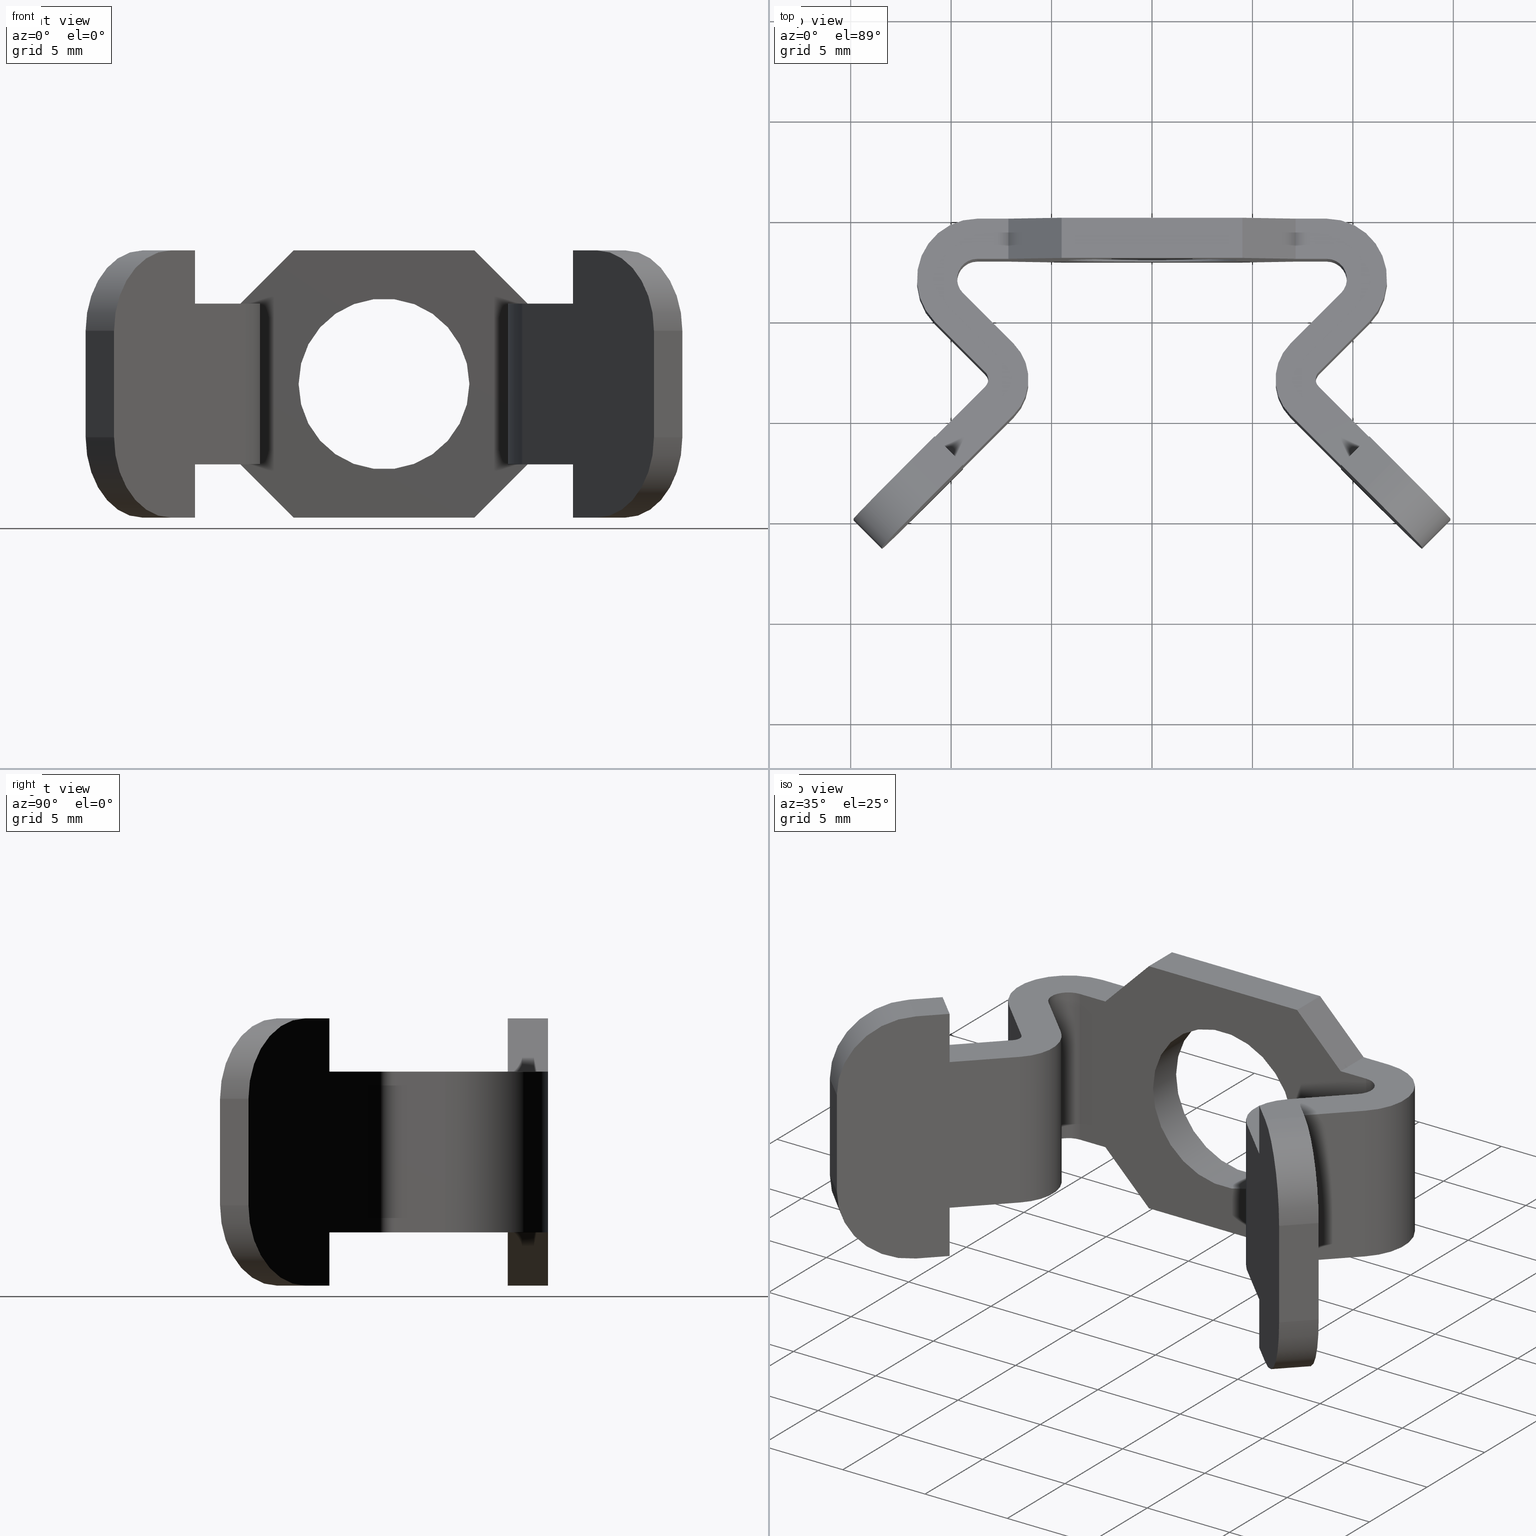
[diagram: canonical four-view strip — front | top / right | iso, engineering-drawing reading convention]
A machine part, canonical four-view strip (front | top / right | iso — engineering-drawing reading convention). The complete STEP part file that produces these views, byte-faithful:
ISO-10303-21;
HEADER;
/****************************************************************
 * Generated by software with PDE/Lib inside                    *
 * PDElib Version v4.4, created Mon 02/23/2004                  *
 * International Technegroup Inc. (www.iti-oh.com)              *
 ****************************************************************/
FILE_DESCRIPTION(('STEP AP203'),'2;1');
FILE_NAME('30.110.00.stp','2011-03-21T16:24:44',(''),(''),'2009.3.110','THINKDESIGN','');
FILE_SCHEMA(('CONFIG_CONTROL_DESIGN'));
ENDSEC;
DATA;
#2=CARTESIAN_POINT('',(-8.649746999965373,-7.999999999932243,-6.649999999973716));
#3=DIRECTION('',(0.0,0.0,1.0));
#4=DIRECTION('',(0.707106781186548,-0.707106781186548,0.0));
#5=AXIS2_PLACEMENT_3D('',#2,#3,#4);
#6=CYLINDRICAL_SURFACE('',#5,0.499999447615652);
#7=CARTESIAN_POINT('',(-8.296193978062547,-7.646447021836593,-3.999999999984429));
#8=VERTEX_POINT('',#7);
#9=CARTESIAN_POINT('',(-8.296193999966818,-8.353552999930798,-3.999999999984453));
#10=VERTEX_POINT('',#9);
#11=CARTESIAN_POINT('',(-8.649746999965375,-7.999999999932244,-3.999999999984443));
#12=DIRECTION('',(0.0,0.0,-1.000000000000000));
#13=DIRECTION('',(0.707106781186548,-0.707106781186548,0.0));
#14=AXIS2_PLACEMENT_3D('',#11,#12,#13);
#15=CIRCLE('',#14,0.499999447615652);
#16=EDGE_CURVE('',#8,#10,#15,.T.);
#17=ORIENTED_EDGE('',*,*,#16,.T.);
#18=CARTESIAN_POINT('',(-8.296193999966818,-8.353552999930798,3.999999999982958));
#19=VERTEX_POINT('',#18);
#20=CARTESIAN_POINT('',(-8.296193999966818,-8.353552999930798,-3.999999999984453));
#21=DIRECTION('',(0.0,0.0,1.0));
#22=VECTOR('',#21,7.999999999967411);
#23=LINE('',#20,#22);
#24=EDGE_CURVE('',#10,#19,#23,.T.);
#25=ORIENTED_EDGE('',*,*,#24,.T.);
#26=CARTESIAN_POINT('',(-8.296193978062547,-7.646447021836593,3.999999999982983));
#27=VERTEX_POINT('',#26);
#28=CARTESIAN_POINT('',(-8.649746999965375,-7.999999999932244,3.999999999982970));
#29=DIRECTION('',(0.0,0.0,1.000000000000000));
#30=DIRECTION('',(0.707106781186548,-0.707106781186548,0.0));
#31=AXIS2_PLACEMENT_3D('',#28,#29,#30);
#32=CIRCLE('',#31,0.499999447615652);
#33=EDGE_CURVE('',#19,#27,#32,.T.);
#34=ORIENTED_EDGE('',*,*,#33,.T.);
#35=CARTESIAN_POINT('',(-8.296193978062547,-7.646447021836593,-3.999999999984429));
#36=DIRECTION('',(0.0,0.0,1.0));
#37=VECTOR('',#36,7.999999999967411);
#38=LINE('',#35,#37);
#39=EDGE_CURVE('',#8,#27,#38,.T.);
#40=ORIENTED_EDGE('',*,*,#39,.F.);
#41=EDGE_LOOP('',(#17,#25,#34,#40));
#42=FACE_OUTER_BOUND('',#41,.T.);
#43=ADVANCED_FACE('',(#42),#6,.F.);
#44=CARTESIAN_POINT('',(-8.296193978062547,-7.646447021836593,-6.649999999973716));
#45=DIRECTION('',(0.707106824994269,0.707106737378823,0.0));
#46=DIRECTION('',(-0.707106737378823,0.707106824994269,0.0));
#47=AXIS2_PLACEMENT_3D('',#44,#45,#46);
#48=PLANE('',#47);
#49=ORIENTED_EDGE('',*,*,#39,.T.);
#50=CARTESIAN_POINT('',(-10.821320343380194,-5.121320343639582,3.999999999983068));
#51=VERTEX_POINT('',#50);
#52=CARTESIAN_POINT('',(-8.296193978062547,-7.646447021836593,3.999999999982983));
#53=DIRECTION('',(-0.707106737379014,0.707106824994078,2.387665E-014));
#54=VECTOR('',#53,3.571068173777222);
#55=LINE('',#52,#54);
#56=EDGE_CURVE('',#27,#51,#55,.T.);
#57=ORIENTED_EDGE('',*,*,#56,.T.);
#58=CARTESIAN_POINT('',(-10.821320343380194,-5.121320343639582,-3.999999999984342));
#59=VERTEX_POINT('',#58);
#60=CARTESIAN_POINT('',(-10.821320343380194,-5.121320343639582,-3.999999999984342));
#61=DIRECTION('',(0.0,0.0,1.0));
#62=VECTOR('',#61,7.999999999967410);
#63=LINE('',#60,#62);
#64=EDGE_CURVE('',#59,#51,#63,.T.);
#65=ORIENTED_EDGE('',*,*,#64,.F.);
#66=CARTESIAN_POINT('',(-8.296193978062547,-7.646447021836593,-3.999999999984429));
#67=DIRECTION('',(-0.707106737379014,0.707106824994078,2.412536E-014));
#68=VECTOR('',#67,3.571068173777222);
#69=LINE('',#66,#68);
#70=EDGE_CURVE('',#8,#59,#69,.T.);
#71=ORIENTED_EDGE('',*,*,#70,.F.);
#72=EDGE_LOOP('',(#49,#57,#65,#71));
#73=FACE_OUTER_BOUND('',#72,.T.);
#74=ADVANCED_FACE('',(#73),#48,.F.);
#75=CARTESIAN_POINT('',(-8.699999813927661,-3.000000077032837,-6.649999999973716));
#76=DIRECTION('',(0.0,0.0,-1.0));
#77=DIRECTION('',(-0.707106824994176,-0.707106737378916,0.0));
#78=AXIS2_PLACEMENT_3D('',#75,#76,#77);
#79=CYLINDRICAL_SURFACE('',#78,3.000000077032213);
#80=CARTESIAN_POINT('',(-8.699999813927207,4.547474E-013,-3.999999999984337));
#81=VERTEX_POINT('',#80);
#82=CARTESIAN_POINT('',(-8.699999813927663,-3.000000077032837,-3.999999999984440));
#83=DIRECTION('',(0.0,0.0,1.000000000000000));
#84=DIRECTION('',(-0.707106824994176,-0.707106737378916,0.0));
#85=AXIS2_PLACEMENT_3D('',#82,#83,#84);
#86=CIRCLE('',#85,3.000000077032213);
#87=EDGE_CURVE('',#81,#59,#86,.T.);
#88=ORIENTED_EDGE('',*,*,#87,.T.);
#89=ORIENTED_EDGE('',*,*,#64,.T.);
#90=CARTESIAN_POINT('',(-8.699999813927207,0.0,3.999999999983755));
#91=VERTEX_POINT('',#90);
#92=CARTESIAN_POINT('',(-8.699999813927663,-3.000000077032837,3.999999999983142));
#93=DIRECTION('',(0.0,0.0,-1.000000000000000));
#94=DIRECTION('',(-0.707106824994176,-0.707106737378916,0.0));
#95=AXIS2_PLACEMENT_3D('',#92,#93,#94);
#96=CIRCLE('',#95,3.000000077032213);
#97=EDGE_CURVE('',#51,#91,#96,.T.);
#98=ORIENTED_EDGE('',*,*,#97,.T.);
#99=CARTESIAN_POINT('',(-8.699999813927207,3.641398E-013,-3.999999999984337));
#100=DIRECTION('',(0.0,0.0,1.0));
#101=VECTOR('',#100,7.999999999968091);
#102=LINE('',#99,#101);
#103=EDGE_CURVE('',#81,#91,#102,.T.);
#104=ORIENTED_EDGE('',*,*,#103,.F.);
#105=EDGE_LOOP('',(#88,#89,#98,#104));
#106=FACE_OUTER_BOUND('',#105,.T.);
#107=ADVANCED_FACE('',(#106),#79,.T.);
#108=CARTESIAN_POINT('',(-8.699999813927207,4.547474E-013,-6.649999999973716));
#109=DIRECTION('',(0.0,-1.0,0.0));
#110=DIRECTION('',(1.0,0.0,0.0));
#111=AXIS2_PLACEMENT_3D('',#108,#109,#110);
#112=PLANE('',#111);
#113=CARTESIAN_POINT('',(8.700000000014370,-4.547474E-013,-3.999999999984336));
#114=VERTEX_POINT('',#113);
#115=CARTESIAN_POINT('',(8.700000000014370,-4.547474E-013,3.999999999983881));
#116=VERTEX_POINT('',#115);
#117=CARTESIAN_POINT('',(8.700000000014370,-4.547474E-013,-3.999999999984336));
#118=DIRECTION('',(0.0,0.0,1.0));
#119=VECTOR('',#118,7.999999999968217);
#120=LINE('',#117,#119);
#121=EDGE_CURVE('',#114,#116,#120,.T.);
#122=ORIENTED_EDGE('',*,*,#121,.F.);
#123=CARTESIAN_POINT('',(7.149999999971442,0.0,-3.999999999984336));
#124=VERTEX_POINT('',#123);
#125=CARTESIAN_POINT('',(7.149999999971442,0.0,-3.999999999984336));
#126=DIRECTION('',(1.0,0.0,0.0));
#127=VECTOR('',#126,1.550000000042928);
#128=LINE('',#125,#127);
#129=EDGE_CURVE('',#124,#114,#128,.T.);
#130=ORIENTED_EDGE('',*,*,#129,.F.);
#131=CARTESIAN_POINT('',(4.499999999982265,0.0,-6.649999999973716));
#132=VERTEX_POINT('',#131);
#133=CARTESIAN_POINT('',(4.499999999982265,0.0,-6.649999999973716));
#134=DIRECTION('',(0.707106781186520,0.0,0.707106781186575));
#135=VECTOR('',#134,3.747665940273539);
#136=LINE('',#133,#135);
#137=EDGE_CURVE('',#132,#124,#136,.T.);
#138=ORIENTED_EDGE('',*,*,#137,.F.);
#139=CARTESIAN_POINT('',(-4.499999999981810,0.0,-6.649999999973716));
#140=VERTEX_POINT('',#139);
#141=CARTESIAN_POINT('',(-4.499999999981810,4.547474E-013,-6.649999999973716));
#142=DIRECTION('',(1.0,0.0,0.0));
#143=VECTOR('',#142,8.999999999964075);
#144=LINE('',#141,#143);
#145=EDGE_CURVE('',#140,#132,#144,.T.);
#146=ORIENTED_EDGE('',*,*,#145,.F.);
#147=CARTESIAN_POINT('',(-7.149999999970987,0.0,-3.999999999984336));
#148=VERTEX_POINT('',#147);
#149=CARTESIAN_POINT('',(-7.149999999970987,0.0,-3.999999999984336));
#150=DIRECTION('',(0.707106781186520,0.0,-0.707106781186575));
#151=VECTOR('',#150,3.747665940273539);
#152=LINE('',#149,#151);
#153=EDGE_CURVE('',#148,#140,#152,.T.);
#154=ORIENTED_EDGE('',*,*,#153,.F.);
#155=CARTESIAN_POINT('',(-8.699999813927207,-5.983652E-030,-3.999999999984337));
#156=DIRECTION('',(1.0,0.0,0.0));
#157=VECTOR('',#156,1.549999813956219);
#158=LINE('',#155,#157);
#159=EDGE_CURVE('',#81,#148,#158,.T.);
#160=ORIENTED_EDGE('',*,*,#159,.F.);
#161=ORIENTED_EDGE('',*,*,#103,.T.);
#162=CARTESIAN_POINT('',(-7.149999999970987,4.547474E-013,3.999999999983753));
#163=VERTEX_POINT('',#162);
#164=CARTESIAN_POINT('',(-7.149999999970987,4.547474E-013,3.999999999983753));
#165=DIRECTION('',(-1.0,0.0,0.0));
#166=VECTOR('',#165,1.549999813956219);
#167=LINE('',#164,#166);
#168=EDGE_CURVE('',#163,#91,#167,.T.);
#169=ORIENTED_EDGE('',*,*,#168,.F.);
#170=CARTESIAN_POINT('',(-4.499999999981810,0.0,6.649999999973261));
#171=VERTEX_POINT('',#170);
#172=CARTESIAN_POINT('',(-4.499999999981810,0.0,6.649999999973261));
#173=DIRECTION('',(-0.707106781186520,0.0,-0.707106781186575));
#174=VECTOR('',#173,3.747665940273539);
#175=LINE('',#172,#174);
#176=EDGE_CURVE('',#171,#163,#175,.T.);
#177=ORIENTED_EDGE('',*,*,#176,.F.);
#178=CARTESIAN_POINT('',(4.499999999982265,0.0,6.649999999973261));
#179=VERTEX_POINT('',#178);
#180=CARTESIAN_POINT('',(-4.499999999981810,0.0,6.649999999973261));
#181=DIRECTION('',(1.0,0.0,0.0));
#182=VECTOR('',#181,8.999999999964075);
#183=LINE('',#180,#182);
#184=EDGE_CURVE('',#171,#179,#183,.T.);
#185=ORIENTED_EDGE('',*,*,#184,.T.);
#186=CARTESIAN_POINT('',(7.149999999971442,0.0,3.999999999983881));
#187=VERTEX_POINT('',#186);
#188=CARTESIAN_POINT('',(7.149999999971442,0.0,3.999999999983881));
#189=DIRECTION('',(-0.707106781186520,0.0,0.707106781186575));
#190=VECTOR('',#189,3.747665940273539);
#191=LINE('',#188,#190);
#192=EDGE_CURVE('',#187,#179,#191,.T.);
#193=ORIENTED_EDGE('',*,*,#192,.F.);
#194=CARTESIAN_POINT('',(8.700000000014370,1.206563E-012,3.999999999983881));
#195=DIRECTION('',(-1.0,1.017282E-013,0.0));
#196=VECTOR('',#195,1.550000000042928);
#197=LINE('',#194,#196);
#198=EDGE_CURVE('',#116,#187,#197,.T.);
#199=ORIENTED_EDGE('',*,*,#198,.F.);
#200=EDGE_LOOP('',(#122,#130,#138,#146,#154,#160,#161,#169,#177,#185,#193,#199));
#201=FACE_OUTER_BOUND('',#200,.T.);
#202=CARTESIAN_POINT('',(-4.249999999983174,0.0,0.0));
#203=VERTEX_POINT('',#202);
#204=CARTESIAN_POINT('',(4.249999999983174,0.0,0.0));
#205=VERTEX_POINT('',#204);
#206=CARTESIAN_POINT('',(0.0,0.0,0.0));
#207=DIRECTION('',(0.0,1.0,3.419153E-014));
#208=DIRECTION('',(1.0,0.0,0.0));
#209=AXIS2_PLACEMENT_3D('',#206,#207,#208);
#210=CIRCLE('',#209,4.249999999983174);
#211=EDGE_CURVE('',#203,#205,#210,.T.);
#212=ORIENTED_EDGE('',*,*,#211,.F.);
#213=CARTESIAN_POINT('',(0.0,0.0,0.0));
#214=DIRECTION('',(0.0,1.0,3.419153E-014));
#215=DIRECTION('',(1.0,0.0,0.0));
#216=AXIS2_PLACEMENT_3D('',#213,#214,#215);
#217=CIRCLE('',#216,4.249999999983174);
#218=EDGE_CURVE('',#205,#203,#217,.T.);
#219=ORIENTED_EDGE('',*,*,#218,.F.);
#220=EDGE_LOOP('',(#212,#219));
#221=FACE_BOUND('',#220,.T.);
#222=ADVANCED_FACE('',(#201,#221),#112,.F.);
#223=CARTESIAN_POINT('',(8.700000000014370,-2.999999715339072,-6.649999999973716));
#224=DIRECTION('',(0.0,0.0,-1.0));
#225=DIRECTION('',(-1.110223E-016,1.0,0.0));
#226=AXIS2_PLACEMENT_3D('',#223,#224,#225);
#227=CYLINDRICAL_SURFACE('',#226,2.999999715338592);
#228=ORIENTED_EDGE('',*,*,#121,.T.);
#229=CARTESIAN_POINT('',(10.821320562330584,-5.121319437570037,3.999999999983068));
#230=VERTEX_POINT('',#229);
#231=CARTESIAN_POINT('',(8.700000000014372,-2.999999715339072,3.999999999983778));
#232=DIRECTION('',(0.0,0.0,-1.0));
#233=DIRECTION('',(0.707106921200604,-0.707106641172464,0.0));
#234=AXIS2_PLACEMENT_3D('',#231,#232,#233);
#235=CIRCLE('',#234,2.999999715338592);
#236=EDGE_CURVE('',#116,#230,#235,.T.);
#237=ORIENTED_EDGE('',*,*,#236,.T.);
#238=CARTESIAN_POINT('',(10.821320562330584,-5.121319437570037,-3.999999999984342));
#239=VERTEX_POINT('',#238);
#240=CARTESIAN_POINT('',(10.821320562330584,-5.121319437570037,-3.999999999984342));
#241=DIRECTION('',(0.0,0.0,1.0));
#242=VECTOR('',#241,7.999999999967410);
#243=LINE('',#240,#242);
#244=EDGE_CURVE('',#239,#230,#243,.T.);
#245=ORIENTED_EDGE('',*,*,#244,.F.);
#246=CARTESIAN_POINT('',(8.700000000014372,-2.999999715339072,-3.999999999984270));
#247=DIRECTION('',(0.0,0.0,1.0));
#248=DIRECTION('',(0.707106921200604,-0.707106641172464,0.0));
#249=AXIS2_PLACEMENT_3D('',#246,#247,#248);
#250=CIRCLE('',#249,2.999999715338592);
#251=EDGE_CURVE('',#239,#114,#250,.T.);
#252=ORIENTED_EDGE('',*,*,#251,.T.);
#253=EDGE_LOOP('',(#228,#237,#245,#252));
#254=FACE_OUTER_BOUND('',#253,.T.);
#255=ADVANCED_FACE('',(#254),#227,.T.);
#256=CARTESIAN_POINT('',(10.821320562330584,-5.121319437570037,-6.649999999973716));
#257=DIRECTION('',(-0.707106921200617,0.707106641172451,0.0));
#258=DIRECTION('',(-0.707106641172451,-0.707106921200617,0.0));
#259=AXIS2_PLACEMENT_3D('',#256,#257,#258);
#260=PLANE('',#259);
#261=ORIENTED_EDGE('',*,*,#244,.T.);
#262=CARTESIAN_POINT('',(8.296194004333756,-7.646446995566294,3.999999999982981));
#263=VERTEX_POINT('',#262);
#264=CARTESIAN_POINT('',(10.821320562330584,-5.121319437570037,3.999999999983068));
#265=DIRECTION('',(-0.707106641172514,-0.707106921200553,-2.437407E-014));
#266=VECTOR('',#265,3.571068932134053);
#267=LINE('',#264,#266);
#268=EDGE_CURVE('',#230,#263,#267,.T.);
#269=ORIENTED_EDGE('',*,*,#268,.T.);
#270=CARTESIAN_POINT('',(8.296194004333756,-7.646446995566294,-3.999999999984429));
#271=VERTEX_POINT('',#270);
#272=CARTESIAN_POINT('',(8.296194004333756,-7.646446995566294,-3.999999999984429));
#273=DIRECTION('',(0.0,0.0,1.0));
#274=VECTOR('',#273,7.999999999967409);
#275=LINE('',#272,#274);
#276=EDGE_CURVE('',#271,#263,#275,.T.);
#277=ORIENTED_EDGE('',*,*,#276,.F.);
#278=CARTESIAN_POINT('',(10.821320562330584,-5.121319437570037,-3.999999999984342));
#279=DIRECTION('',(-0.707106641172514,-0.707106921200553,-2.424971E-014));
#280=VECTOR('',#279,3.571068932134053);
#281=LINE('',#278,#280);
#282=EDGE_CURVE('',#239,#271,#281,.T.);
#283=ORIENTED_EDGE('',*,*,#282,.F.);
#284=EDGE_LOOP('',(#261,#269,#277,#283));
#285=FACE_OUTER_BOUND('',#284,.T.);
#286=ADVANCED_FACE('',(#285),#260,.F.);
#287=CARTESIAN_POINT('',(8.649747148623192,-7.999999999841748,-6.649999999973716));
#288=DIRECTION('',(0.0,0.0,1.0));
#289=DIRECTION('',(-0.707106921200640,0.707106641172428,0.0));
#290=AXIS2_PLACEMENT_3D('',#287,#288,#289);
#291=CYLINDRICAL_SURFACE('',#290,0.499999552668946);
#292=CARTESIAN_POINT('',(8.296194074335745,-8.353553074119191,3.999999999982958));
#293=VERTEX_POINT('',#292);
#294=CARTESIAN_POINT('',(8.649747148623193,-7.999999999841749,3.999999999982970));
#295=DIRECTION('',(0.0,0.0,1.000000000000000));
#296=DIRECTION('',(-0.707106921200640,0.707106641172428,0.0));
#297=AXIS2_PLACEMENT_3D('',#294,#295,#296);
#298=CIRCLE('',#297,0.499999552668946);
#299=EDGE_CURVE('',#263,#293,#298,.T.);
#300=ORIENTED_EDGE('',*,*,#299,.T.);
#301=CARTESIAN_POINT('',(8.296194074335745,-8.353553074119191,-3.999999999984453));
#302=VERTEX_POINT('',#301);
#303=CARTESIAN_POINT('',(8.296194074335745,-8.353553074119191,-3.999999999984453));
#304=DIRECTION('',(0.0,0.0,1.0));
#305=VECTOR('',#304,7.999999999967411);
#306=LINE('',#303,#305);
#307=EDGE_CURVE('',#302,#293,#306,.T.);
#308=ORIENTED_EDGE('',*,*,#307,.F.);
#309=CARTESIAN_POINT('',(8.649747148623193,-7.999999999841749,-3.999999999984443));
#310=DIRECTION('',(0.0,0.0,-1.000000000000000));
#311=DIRECTION('',(-0.707106921200640,0.707106641172428,0.0));
#312=AXIS2_PLACEMENT_3D('',#309,#310,#311);
#313=CIRCLE('',#312,0.499999552668946);
#314=EDGE_CURVE('',#302,#271,#313,.T.);
#315=ORIENTED_EDGE('',*,*,#314,.T.);
#316=ORIENTED_EDGE('',*,*,#276,.T.);
#317=EDGE_LOOP('',(#300,#308,#315,#316));
#318=FACE_OUTER_BOUND('',#317,.T.);
#319=ADVANCED_FACE('',(#318),#291,.F.);
#320=CARTESIAN_POINT('',(8.649747148623192,-7.999999999841748,-6.649999999973716));
#321=DIRECTION('',(0.0,0.0,-1.0));
#322=DIRECTION('',(-0.707106781197007,-0.707106781176088,0.0));
#323=AXIS2_PLACEMENT_3D('',#320,#321,#322);
#324=CYLINDRICAL_SURFACE('',#323,2.499999552668946);
#325=CARTESIAN_POINT('',(6.881980161931551,-6.232233713221831,-3.999999999984381));
#326=VERTEX_POINT('',#325);
#327=CARTESIAN_POINT('',(6.881980511941492,-9.767766636471151,-3.999999999984501));
#328=VERTEX_POINT('',#327);
#329=CARTESIAN_POINT('',(8.649747148623193,-7.999999999841749,-3.999999999984443));
#330=DIRECTION('',(0.0,0.0,1.000000000000000));
#331=DIRECTION('',(-0.707106921200640,0.707106641172428,0.0));
#332=AXIS2_PLACEMENT_3D('',#329,#330,#331);
#333=CIRCLE('',#332,2.499999552668946);
#334=EDGE_CURVE('',#326,#328,#333,.T.);
#335=ORIENTED_EDGE('',*,*,#334,.T.);
#336=CARTESIAN_POINT('',(6.881980511941492,-9.767766636471151,3.999999999982908));
#337=VERTEX_POINT('',#336);
#338=CARTESIAN_POINT('',(6.881980511941492,-9.767766636471151,-3.999999999984501));
#339=DIRECTION('',(0.0,0.0,1.0));
#340=VECTOR('',#339,7.999999999967409);
#341=LINE('',#338,#340);
#342=EDGE_CURVE('',#328,#337,#341,.T.);
#343=ORIENTED_EDGE('',*,*,#342,.T.);
#344=CARTESIAN_POINT('',(6.881980161931551,-6.232233713221831,3.999999999983029));
#345=VERTEX_POINT('',#344);
#346=CARTESIAN_POINT('',(8.649747148623193,-7.999999999841749,3.999999999982970));
#347=DIRECTION('',(0.0,0.0,-1.000000000000000));
#348=DIRECTION('',(-0.707106921200640,0.707106641172428,0.0));
#349=AXIS2_PLACEMENT_3D('',#346,#347,#348);
#350=CIRCLE('',#349,2.499999552668946);
#351=EDGE_CURVE('',#337,#345,#350,.T.);
#352=ORIENTED_EDGE('',*,*,#351,.T.);
#353=CARTESIAN_POINT('',(6.881980161931551,-6.232233713221831,-3.999999999984381));
#354=DIRECTION('',(0.0,0.0,1.0));
#355=VECTOR('',#354,7.999999999967409);
#356=LINE('',#353,#355);
#357=EDGE_CURVE('',#326,#345,#356,.T.);
#358=ORIENTED_EDGE('',*,*,#357,.F.);
#359=EDGE_LOOP('',(#335,#343,#352,#358));
#360=FACE_OUTER_BOUND('',#359,.T.);
#361=ADVANCED_FACE('',(#360),#324,.T.);
#362=CARTESIAN_POINT('',(6.881980161931551,-6.232233713221831,-6.649999999973716));
#363=DIRECTION('',(0.707106921200617,-0.707106641172451,0.0));
#364=DIRECTION('',(0.707106641172451,0.707106921200617,0.0));
#365=AXIS2_PLACEMENT_3D('',#362,#363,#364);
#366=PLANE('',#365);
#367=ORIENTED_EDGE('',*,*,#357,.T.);
#368=CARTESIAN_POINT('',(9.407106719928834,-3.707106155225574,3.999999999983116));
#369=VERTEX_POINT('',#368);
#370=CARTESIAN_POINT('',(6.881980161931551,-6.232233713221831,3.999999999983029));
#371=DIRECTION('',(0.707106641172578,0.707106921200489,2.437407E-014));
#372=VECTOR('',#371,3.571068932134375);
#373=LINE('',#370,#372);
#374=EDGE_CURVE('',#345,#369,#373,.T.);
#375=ORIENTED_EDGE('',*,*,#374,.T.);
#376=CARTESIAN_POINT('',(9.407106719928834,-3.707106155225574,-3.999999999984294));
#377=VERTEX_POINT('',#376);
#378=CARTESIAN_POINT('',(9.407106719928834,-3.707106155225574,-3.999999999984294));
#379=DIRECTION('',(0.0,0.0,1.0));
#380=VECTOR('',#379,7.999999999967410);
#381=LINE('',#378,#380);
#382=EDGE_CURVE('',#377,#369,#381,.T.);
#383=ORIENTED_EDGE('',*,*,#382,.F.);
#384=CARTESIAN_POINT('',(6.881980161931551,-6.232233713221831,-3.999999999984381));
#385=DIRECTION('',(0.707106641172578,0.707106921200489,2.412536E-014));
#386=VECTOR('',#385,3.571068932134375);
#387=LINE('',#384,#386);
#388=EDGE_CURVE('',#326,#377,#387,.T.);
#389=ORIENTED_EDGE('',*,*,#388,.F.);
#390=EDGE_LOOP('',(#367,#375,#383,#389));
#391=FACE_OUTER_BOUND('',#390,.T.);
#392=ADVANCED_FACE('',(#391),#366,.F.);
#393=CARTESIAN_POINT('',(8.700000000014370,-2.999999715339072,-6.649999999973716));
#394=DIRECTION('',(0.0,0.0,1.0));
#395=DIRECTION('',(0.707106921200604,-0.707106641172464,0.0));
#396=AXIS2_PLACEMENT_3D('',#393,#394,#395);
#397=CYLINDRICAL_SURFACE('',#396,0.999999715338592);
#398=CARTESIAN_POINT('',(8.699999999987085,-2.0,-3.999999999984405));
#399=VERTEX_POINT('',#398);
#400=CARTESIAN_POINT('',(8.700000000014372,-2.999999715339072,-3.999999999984439));
#401=DIRECTION('',(0.0,0.0,-1.0));
#402=DIRECTION('',(0.707106921200604,-0.707106641172464,0.0));
#403=AXIS2_PLACEMENT_3D('',#400,#401,#402);
#404=CIRCLE('',#403,0.999999715338592);
#405=EDGE_CURVE('',#399,#377,#404,.T.);
#406=ORIENTED_EDGE('',*,*,#405,.T.);
#407=ORIENTED_EDGE('',*,*,#382,.T.);
#408=CARTESIAN_POINT('',(8.699999999987085,-2.0,3.999999999983812));
#409=VERTEX_POINT('',#408);
#410=CARTESIAN_POINT('',(8.700000000014372,-2.999999715339072,3.999999999983778));
#411=DIRECTION('',(0.0,0.0,-1.0));
#412=DIRECTION('',(0.707106921200604,-0.707106641172464,0.0));
#413=AXIS2_PLACEMENT_3D('',#410,#411,#412);
#414=CIRCLE('',#413,0.999999715338592);
#415=EDGE_CURVE('',#409,#369,#414,.T.);
#416=ORIENTED_EDGE('',*,*,#415,.F.);
#417=CARTESIAN_POINT('',(8.699999999987085,-2.0,-3.999999999984405));
#418=DIRECTION('',(0.0,0.0,1.0));
#419=VECTOR('',#418,7.999999999968217);
#420=LINE('',#417,#419);
#421=EDGE_CURVE('',#399,#409,#420,.T.);
#422=ORIENTED_EDGE('',*,*,#421,.F.);
#423=EDGE_LOOP('',(#406,#407,#416,#422));
#424=FACE_OUTER_BOUND('',#423,.T.);
#425=ADVANCED_FACE('',(#424),#397,.F.);
#426=CARTESIAN_POINT('',(-8.699999813927661,-3.000000077032837,-6.649999999973716));
#427=DIRECTION('',(0.0,0.0,1.0));
#428=DIRECTION('',(0.0,1.0,0.0));
#429=AXIS2_PLACEMENT_3D('',#426,#427,#428);
#430=CYLINDRICAL_SURFACE('',#429,1.000000077032213);
#431=CARTESIAN_POINT('',(-8.699999813927661,-2.000000000000455,-3.999999999984405));
#432=VERTEX_POINT('',#431);
#433=CARTESIAN_POINT('',(-8.699999813927661,-2.000000000000455,3.999999999983684));
#434=VERTEX_POINT('',#433);
#435=CARTESIAN_POINT('',(-8.699999813927661,-2.000000000000455,-3.999999999984405));
#436=DIRECTION('',(0.0,0.0,1.0));
#437=VECTOR('',#436,7.999999999968090);
#438=LINE('',#435,#437);
#439=EDGE_CURVE('',#432,#434,#438,.T.);
#440=ORIENTED_EDGE('',*,*,#439,.T.);
#441=CARTESIAN_POINT('',(-9.407106693390688,-3.707106868881965,3.999999999983116));
#442=VERTEX_POINT('',#441);
#443=CARTESIAN_POINT('',(-8.699999813927663,-3.000000077032837,3.999999999983652));
#444=DIRECTION('',(0.0,0.0,1.000000000000000));
#445=DIRECTION('',(-0.707106824994176,-0.707106737378916,0.0));
#446=AXIS2_PLACEMENT_3D('',#443,#444,#445);
#447=CIRCLE('',#446,1.000000077032213);
#448=EDGE_CURVE('',#434,#442,#447,.T.);
#449=ORIENTED_EDGE('',*,*,#448,.T.);
#450=CARTESIAN_POINT('',(-9.407106693390688,-3.707106868881510,-3.999999999984294));
#451=VERTEX_POINT('',#450);
#452=CARTESIAN_POINT('',(-9.407106693390688,-3.707106868881601,-3.999999999984294));
#453=DIRECTION('',(0.0,0.0,1.0));
#454=VECTOR('',#453,7.999999999967410);
#455=LINE('',#452,#454);
#456=EDGE_CURVE('',#451,#442,#455,.T.);
#457=ORIENTED_EDGE('',*,*,#456,.F.);
#458=CARTESIAN_POINT('',(-8.699999813927663,-3.000000077032837,-3.999999999984440));
#459=DIRECTION('',(0.0,0.0,1.000000000000000));
#460=DIRECTION('',(-0.707106824994176,-0.707106737378916,0.0));
#461=AXIS2_PLACEMENT_3D('',#458,#459,#460);
#462=CIRCLE('',#461,1.000000077032213);
#463=EDGE_CURVE('',#432,#451,#462,.T.);
#464=ORIENTED_EDGE('',*,*,#463,.F.);
#465=EDGE_LOOP('',(#440,#449,#457,#464));
#466=FACE_OUTER_BOUND('',#465,.T.);
#467=ADVANCED_FACE('',(#466),#430,.F.);
#468=CARTESIAN_POINT('',(-9.407106693390688,-3.707106868881510,-6.649999999973716));
#469=DIRECTION('',(-0.707106824994269,-0.707106737378823,-2.417706E-014));
#470=DIRECTION('',(0.707106737378823,-0.707106824994269,0.0));
#471=AXIS2_PLACEMENT_3D('',#468,#469,#470);
#472=PLANE('',#471);
#473=ORIENTED_EDGE('',*,*,#456,.T.);
#474=CARTESIAN_POINT('',(-6.881980328074405,-6.232233547079886,3.999999999983029));
#475=VERTEX_POINT('',#474);
#476=CARTESIAN_POINT('',(-9.407106693390688,-3.707106868881965,3.999999999983116));
#477=DIRECTION('',(0.707106737378696,-0.707106824994396,-2.437408E-014));
#478=VECTOR('',#477,3.571068173776900);
#479=LINE('',#476,#478);
#480=EDGE_CURVE('',#442,#475,#479,.T.);
#481=ORIENTED_EDGE('',*,*,#480,.T.);
#482=CARTESIAN_POINT('',(-6.881980328074405,-6.232233547079886,-3.999999999984381));
#483=VERTEX_POINT('',#482);
#484=CARTESIAN_POINT('',(-6.881980328074405,-6.232233547079886,-3.999999999984381));
#485=DIRECTION('',(0.0,0.0,1.0));
#486=VECTOR('',#485,7.999999999967409);
#487=LINE('',#484,#486);
#488=EDGE_CURVE('',#483,#475,#487,.T.);
#489=ORIENTED_EDGE('',*,*,#488,.F.);
#490=CARTESIAN_POINT('',(-9.407106693390688,-3.707106868881510,-3.999999999984294));
#491=DIRECTION('',(0.707106737378632,-0.707106824994460,-2.412536E-014));
#492=VECTOR('',#491,3.571068173777222);
#493=LINE('',#490,#492);
#494=EDGE_CURVE('',#451,#483,#493,.T.);
#495=ORIENTED_EDGE('',*,*,#494,.F.);
#496=EDGE_LOOP('',(#473,#481,#489,#495));
#497=FACE_OUTER_BOUND('',#496,.T.);
#498=ADVANCED_FACE('',(#497),#472,.F.);
#499=CARTESIAN_POINT('',(-8.649746999965373,-7.999999999932243,-6.649999999973716));
#500=DIRECTION('',(0.0,0.0,-1.0));
#501=DIRECTION('',(0.707106824994226,0.707106737378867,0.0));
#502=AXIS2_PLACEMENT_3D('',#499,#500,#501);
#503=CYLINDRICAL_SURFACE('',#502,2.499999447615652);
#504=ORIENTED_EDGE('',*,*,#488,.T.);
#505=CARTESIAN_POINT('',(-6.881980437593938,-9.767766562303223,3.999999999982908));
#506=VERTEX_POINT('',#505);
#507=CARTESIAN_POINT('',(-8.649746999965375,-7.999999999932244,3.999999999982970));
#508=DIRECTION('',(0.0,0.0,-1.000000000000000));
#509=DIRECTION('',(0.707106781186548,-0.707106781186548,0.0));
#510=AXIS2_PLACEMENT_3D('',#507,#508,#509);
#511=CIRCLE('',#510,2.499999447615652);
#512=EDGE_CURVE('',#475,#506,#511,.T.);
#513=ORIENTED_EDGE('',*,*,#512,.T.);
#514=CARTESIAN_POINT('',(-6.881980437593938,-9.767766562303223,-3.999999999984501));
#515=VERTEX_POINT('',#514);
#516=CARTESIAN_POINT('',(-6.881980437593938,-9.767766562303223,-3.999999999984501));
#517=DIRECTION('',(0.0,0.0,1.0));
#518=VECTOR('',#517,7.999999999967409);
#519=LINE('',#516,#518);
#520=EDGE_CURVE('',#515,#506,#519,.T.);
#521=ORIENTED_EDGE('',*,*,#520,.F.);
#522=CARTESIAN_POINT('',(-8.649746999965375,-7.999999999932244,-3.999999999984443));
#523=DIRECTION('',(0.0,0.0,1.000000000000000));
#524=DIRECTION('',(0.707106781186548,-0.707106781186548,0.0));
#525=AXIS2_PLACEMENT_3D('',#522,#523,#524);
#526=CIRCLE('',#525,2.499999447615652);
#527=EDGE_CURVE('',#515,#483,#526,.T.);
#528=ORIENTED_EDGE('',*,*,#527,.T.);
#529=EDGE_LOOP('',(#504,#513,#521,#528));
#530=FACE_OUTER_BOUND('',#529,.T.);
#531=ADVANCED_FACE('',(#530),#503,.T.);
#532=CARTESIAN_POINT('',(-1.782155E-009,-33.731389436312384,-6.649999999973716));
#533=DIRECTION('',(0.0,0.0,-1.0));
#534=DIRECTION('',(-0.707106781186548,0.707106781186548,0.0));
#535=AXIS2_PLACEMENT_3D('',#532,#533,#534);
#536=PLANE('',#535);
#537=ORIENTED_EDGE('',*,*,#145,.T.);
#538=CARTESIAN_POINT('',(4.499999999982265,-2.0,-6.649999999973716));
#539=VERTEX_POINT('',#538);
#540=CARTESIAN_POINT('',(4.499999999982265,0.0,-6.649999999973716));
#541=DIRECTION('',(0.0,-1.0,0.0));
#542=VECTOR('',#541,2.0);
#543=LINE('',#540,#542);
#544=EDGE_CURVE('',#132,#539,#543,.T.);
#545=ORIENTED_EDGE('',*,*,#544,.T.);
#546=CARTESIAN_POINT('',(-4.499999999981810,-2.0,-6.649999999973716));
#547=VERTEX_POINT('',#546);
#548=CARTESIAN_POINT('',(4.499999999982265,-2.0,-6.649999999973716));
#549=DIRECTION('',(-1.0,0.0,0.0));
#550=VECTOR('',#549,8.999999999964075);
#551=LINE('',#548,#550);
#552=EDGE_CURVE('',#539,#547,#551,.T.);
#553=ORIENTED_EDGE('',*,*,#552,.T.);
#554=CARTESIAN_POINT('',(-4.499999999981810,0.0,-6.649999999973716));
#555=DIRECTION('',(0.0,-1.0,0.0));
#556=VECTOR('',#555,2.0);
#557=LINE('',#554,#556);
#558=EDGE_CURVE('',#140,#547,#557,.T.);
#559=ORIENTED_EDGE('',*,*,#558,.F.);
#560=EDGE_LOOP('',(#537,#545,#553,#559));
#561=FACE_OUTER_BOUND('',#560,.T.);
#562=ADVANCED_FACE('',(#561),#536,.T.);
#563=CARTESIAN_POINT('',(-1.782155E-009,-33.731389436312838,6.649999999973261));
#564=DIRECTION('',(0.0,0.0,-1.0));
#565=DIRECTION('',(-0.707106781186548,0.707106781186548,0.0));
#566=AXIS2_PLACEMENT_3D('',#563,#564,#565);
#567=PLANE('',#566);
#568=CARTESIAN_POINT('',(-4.499999999981810,-2.0,6.649999999973261));
#569=VERTEX_POINT('',#568);
#570=CARTESIAN_POINT('',(-4.499999999981810,0.0,6.649999999973261));
#571=DIRECTION('',(0.0,-1.0,0.0));
#572=VECTOR('',#571,2.0);
#573=LINE('',#570,#572);
#574=EDGE_CURVE('',#171,#569,#573,.T.);
#575=ORIENTED_EDGE('',*,*,#574,.T.);
#576=CARTESIAN_POINT('',(4.499999999982265,-2.0,6.649999999973261));
#577=VERTEX_POINT('',#576);
#578=CARTESIAN_POINT('',(4.499999999982265,-2.0,6.649999999973261));
#579=DIRECTION('',(-1.0,0.0,0.0));
#580=VECTOR('',#579,8.999999999964075);
#581=LINE('',#578,#580);
#582=EDGE_CURVE('',#577,#569,#581,.T.);
#583=ORIENTED_EDGE('',*,*,#582,.F.);
#584=CARTESIAN_POINT('',(4.499999999982265,0.0,6.649999999973261));
#585=DIRECTION('',(0.0,-1.0,0.0));
#586=VECTOR('',#585,2.0);
#587=LINE('',#584,#586);
#588=EDGE_CURVE('',#179,#577,#587,.T.);
#589=ORIENTED_EDGE('',*,*,#588,.F.);
#590=ORIENTED_EDGE('',*,*,#184,.F.);
#591=EDGE_LOOP('',(#575,#583,#589,#590));
#592=FACE_OUTER_BOUND('',#591,.T.);
#593=ADVANCED_FACE('',(#592),#567,.F.);
#594=CARTESIAN_POINT('',(7.149999999971442,0.0,3.999999999983881));
#595=DIRECTION('',(0.707106781186575,-2.428410E-014,0.707106781186520));
#596=DIRECTION('',(-0.707106781186520,0.0,0.707106781186575));
#597=AXIS2_PLACEMENT_3D('',#594,#595,#596);
#598=PLANE('',#597);
#599=ORIENTED_EDGE('',*,*,#192,.T.);
#600=ORIENTED_EDGE('',*,*,#588,.T.);
#601=CARTESIAN_POINT('',(7.149999999971442,-2.0,3.999999999983812));
#602=VERTEX_POINT('',#601);
#603=CARTESIAN_POINT('',(4.499999999982265,-2.0,6.649999999973261));
#604=DIRECTION('',(0.707106781186511,0.0,-0.707106781186584));
#605=VECTOR('',#604,3.747665940273588);
#606=LINE('',#603,#605);
#607=EDGE_CURVE('',#577,#602,#606,.T.);
#608=ORIENTED_EDGE('',*,*,#607,.T.);
#609=CARTESIAN_POINT('',(7.149999999971442,0.0,3.999999999983881));
#610=DIRECTION('',(0.0,-1.0,0.0));
#611=VECTOR('',#610,2.0);
#612=LINE('',#609,#611);
#613=EDGE_CURVE('',#187,#602,#612,.T.);
#614=ORIENTED_EDGE('',*,*,#613,.F.);
#615=EDGE_LOOP('',(#599,#600,#608,#614));
#616=FACE_OUTER_BOUND('',#615,.T.);
#617=ADVANCED_FACE('',(#616),#598,.T.);
#618=CARTESIAN_POINT('',(4.499999999982265,0.0,-6.649999999973716));
#619=DIRECTION('',(0.707106781186575,2.417942E-014,-0.707106781186520));
#620=DIRECTION('',(0.707106781186520,0.0,0.707106781186575));
#621=AXIS2_PLACEMENT_3D('',#618,#619,#620);
#622=PLANE('',#621);
#623=CARTESIAN_POINT('',(7.149999999971442,-2.0,-3.999999999984405));
#624=VERTEX_POINT('',#623);
#625=CARTESIAN_POINT('',(7.149999999971442,0.0,-3.999999999984336));
#626=DIRECTION('',(0.0,-1.0,0.0));
#627=VECTOR('',#626,2.0);
#628=LINE('',#625,#627);
#629=EDGE_CURVE('',#124,#624,#628,.T.);
#630=ORIENTED_EDGE('',*,*,#629,.T.);
#631=CARTESIAN_POINT('',(4.499999999982265,-2.0,-6.649999999973716));
#632=DIRECTION('',(0.707106781186530,0.0,0.707106781186565));
#633=VECTOR('',#632,3.747665940273491);
#634=LINE('',#631,#633);
#635=EDGE_CURVE('',#539,#624,#634,.T.);
#636=ORIENTED_EDGE('',*,*,#635,.F.);
#637=ORIENTED_EDGE('',*,*,#544,.F.);
#638=ORIENTED_EDGE('',*,*,#137,.T.);
#639=EDGE_LOOP('',(#630,#636,#637,#638));
#640=FACE_OUTER_BOUND('',#639,.T.);
#641=ADVANCED_FACE('',(#640),#622,.T.);
#642=CARTESIAN_POINT('',(-4.499999999981810,0.0,6.649999999973261));
#643=DIRECTION('',(-0.707106781186575,-2.428410E-014,0.707106781186520));
#644=DIRECTION('',(-0.707106781186520,0.0,-0.707106781186575));
#645=AXIS2_PLACEMENT_3D('',#642,#643,#644);
#646=PLANE('',#645);
#647=CARTESIAN_POINT('',(-7.149999999970987,-2.0,3.999999999983684));
#648=VERTEX_POINT('',#647);
#649=CARTESIAN_POINT('',(-7.149999999970987,4.547474E-013,3.999999999983753));
#650=DIRECTION('',(0.0,-1.0,0.0));
#651=VECTOR('',#650,2.000000000000455);
#652=LINE('',#649,#651);
#653=EDGE_CURVE('',#163,#648,#652,.T.);
#654=ORIENTED_EDGE('',*,*,#653,.T.);
#655=CARTESIAN_POINT('',(-4.499999999981810,-2.0,6.649999999973261));
#656=DIRECTION('',(-0.707106781186494,0.0,-0.707106781186601));
#657=VECTOR('',#656,3.747665940273679);
#658=LINE('',#655,#657);
#659=EDGE_CURVE('',#569,#648,#658,.T.);
#660=ORIENTED_EDGE('',*,*,#659,.F.);
#661=ORIENTED_EDGE('',*,*,#574,.F.);
#662=ORIENTED_EDGE('',*,*,#176,.T.);
#663=EDGE_LOOP('',(#654,#660,#661,#662));
#664=FACE_OUTER_BOUND('',#663,.T.);
#665=ADVANCED_FACE('',(#664),#646,.T.);
#666=CARTESIAN_POINT('',(-7.149999999970987,0.0,-3.999999999984336));
#667=DIRECTION('',(-0.707106781186575,2.407475E-014,-0.707106781186520));
#668=DIRECTION('',(0.707106781186520,0.0,-0.707106781186575));
#669=AXIS2_PLACEMENT_3D('',#666,#667,#668);
#670=PLANE('',#669);
#671=ORIENTED_EDGE('',*,*,#153,.T.);
#672=ORIENTED_EDGE('',*,*,#558,.T.);
#673=CARTESIAN_POINT('',(-7.149999999970987,-2.0,-3.999999999984404));
#674=VERTEX_POINT('',#673);
#675=CARTESIAN_POINT('',(-4.499999999981810,-2.0,-6.649999999973716));
#676=DIRECTION('',(-0.707106781186530,0.0,0.707106781186566));
#677=VECTOR('',#676,3.747665940273491);
#678=LINE('',#675,#677);
#679=EDGE_CURVE('',#547,#674,#678,.T.);
#680=ORIENTED_EDGE('',*,*,#679,.T.);
#681=CARTESIAN_POINT('',(-7.149999999970987,0.0,-3.999999999984336));
#682=DIRECTION('',(0.0,-1.0,0.0));
#683=VECTOR('',#682,2.0);
#684=LINE('',#681,#683);
#685=EDGE_CURVE('',#148,#674,#684,.T.);
#686=ORIENTED_EDGE('',*,*,#685,.F.);
#687=EDGE_LOOP('',(#671,#672,#680,#686));
#688=FACE_OUTER_BOUND('',#687,.T.);
#689=ADVANCED_FACE('',(#688),#670,.T.);
#690=CARTESIAN_POINT('',(0.0,0.0,0.0));
#691=DIRECTION('',(0.0,1.0,3.419153E-014));
#692=DIRECTION('',(1.0,0.0,0.0));
#693=AXIS2_PLACEMENT_3D('',#690,#691,#692);
#694=CYLINDRICAL_SURFACE('',#693,4.249999999983174);
#695=CARTESIAN_POINT('',(4.249999999983174,-2.0,-6.838974E-014));
#696=VERTEX_POINT('',#695);
#697=CARTESIAN_POINT('',(4.249999999983174,0.0,0.0));
#698=DIRECTION('',(0.0,-1.0,0.0));
#699=VECTOR('',#698,2.0);
#700=LINE('',#697,#699);
#701=EDGE_CURVE('',#205,#696,#700,.T.);
#702=ORIENTED_EDGE('',*,*,#701,.T.);
#703=CARTESIAN_POINT('',(-4.249999999983174,-2.0,-6.838974E-014));
#704=VERTEX_POINT('',#703);
#705=CARTESIAN_POINT('',(0.0,-2.0,-6.838974E-014));
#706=DIRECTION('',(0.0,-1.0,-3.419153E-014));
#707=DIRECTION('',(1.0,0.0,0.0));
#708=AXIS2_PLACEMENT_3D('',#705,#706,#707);
#709=CIRCLE('',#708,4.249999999983174);
#710=EDGE_CURVE('',#696,#704,#709,.T.);
#711=ORIENTED_EDGE('',*,*,#710,.T.);
#712=CARTESIAN_POINT('',(0.0,-2.0,-6.838974E-014));
#713=DIRECTION('',(0.0,-1.0,-3.419153E-014));
#714=DIRECTION('',(1.0,0.0,0.0));
#715=AXIS2_PLACEMENT_3D('',#712,#713,#714);
#716=CIRCLE('',#715,4.249999999983174);
#717=EDGE_CURVE('',#704,#696,#716,.T.);
#718=ORIENTED_EDGE('',*,*,#717,.T.);
#719=ORIENTED_EDGE('',*,*,#701,.F.);
#720=ORIENTED_EDGE('',*,*,#218,.T.);
#721=ORIENTED_EDGE('',*,*,#211,.T.);
#722=EDGE_LOOP('',(#702,#711,#718,#719,#720,#721));
#723=FACE_OUTER_BOUND('',#722,.T.);
#724=ADVANCED_FACE('',(#723),#694,.F.);
#725=CARTESIAN_POINT('',(8.725073962264105,-2.0,-6.675101390862892));
#726=DIRECTION('',(0.0,1.0,0.0));
#727=DIRECTION('',(-1.0,0.0,0.0));
#728=AXIS2_PLACEMENT_3D('',#725,#726,#727);
#729=PLANE('',#728);
#730=CARTESIAN_POINT('',(8.699999999987085,-2.0,-3.999999999984405));
#731=DIRECTION('',(-1.0,0.0,0.0));
#732=VECTOR('',#731,1.550000000015643);
#733=LINE('',#730,#732);
#734=EDGE_CURVE('',#399,#624,#733,.T.);
#735=ORIENTED_EDGE('',*,*,#734,.F.);
#736=ORIENTED_EDGE('',*,*,#421,.T.);
#737=CARTESIAN_POINT('',(8.699999999987085,-2.0,3.999999999983812));
#738=DIRECTION('',(-1.0,0.0,0.0));
#739=VECTOR('',#738,1.550000000015643);
#740=LINE('',#737,#739);
#741=EDGE_CURVE('',#409,#602,#740,.T.);
#742=ORIENTED_EDGE('',*,*,#741,.T.);
#743=ORIENTED_EDGE('',*,*,#607,.F.);
#744=ORIENTED_EDGE('',*,*,#582,.T.);
#745=ORIENTED_EDGE('',*,*,#659,.T.);
#746=CARTESIAN_POINT('',(-8.699999813927661,-2.000000000000455,3.999999999983684));
#747=DIRECTION('',(1.0,2.933854E-013,0.0));
#748=VECTOR('',#747,1.549999813956674);
#749=LINE('',#746,#748);
#750=EDGE_CURVE('',#434,#648,#749,.T.);
#751=ORIENTED_EDGE('',*,*,#750,.F.);
#752=ORIENTED_EDGE('',*,*,#439,.F.);
#753=CARTESIAN_POINT('',(-8.699999813927661,-2.000000000000455,-3.999999999984405));
#754=DIRECTION('',(1.0,2.933854E-013,8.595276E-016));
#755=VECTOR('',#754,1.549999813956674);
#756=LINE('',#753,#755);
#757=EDGE_CURVE('',#432,#674,#756,.T.);
#758=ORIENTED_EDGE('',*,*,#757,.T.);
#759=ORIENTED_EDGE('',*,*,#679,.F.);
#760=ORIENTED_EDGE('',*,*,#552,.F.);
#761=ORIENTED_EDGE('',*,*,#635,.T.);
#762=EDGE_LOOP('',(#735,#736,#742,#743,#744,#745,#751,#752,#758,#759,#760,#761));
#763=FACE_OUTER_BOUND('',#762,.T.);
#764=ORIENTED_EDGE('',*,*,#717,.F.);
#765=ORIENTED_EDGE('',*,*,#710,.F.);
#766=EDGE_LOOP('',(#764,#765));
#767=FACE_BOUND('',#766,.T.);
#768=ADVANCED_FACE('',(#763,#767),#729,.F.);
#769=CARTESIAN_POINT('',(-14.851828999940153,-14.909187999904589,-6.649999999973716));
#770=DIRECTION('',(0.707106781186548,-0.707106781186548,0.0));
#771=DIRECTION('',(0.707106781186548,0.707106781186548,0.0));
#772=AXIS2_PLACEMENT_3D('',#769,#770,#771);
#773=PLANE('',#772);
#774=CARTESIAN_POINT('',(-14.851828999940608,-14.909187999904134,2.649999999973261));
#775=VERTEX_POINT('',#774);
#776=CARTESIAN_POINT('',(-12.023401875194395,-12.080760875157466,6.649999999973261));
#777=VERTEX_POINT('',#776);
#778=CARTESIAN_POINT('',(-12.023401875193940,-12.080760875158376,2.649999999973261));
#779=DIRECTION('',(-0.707106781186604,0.707106781186491,0.0));
#780=DIRECTION('',(-0.707106781186491,-0.707106781186604,0.0));
#781=AXIS2_PLACEMENT_3D('',#778,#779,#780);
#782=CIRCLE('',#781,4.000000000000354);
#783=EDGE_CURVE('',#775,#777,#782,.T.);
#784=ORIENTED_EDGE('',*,*,#783,.T.);
#785=CARTESIAN_POINT('',(-10.821320562315577,-10.878679562280013,6.649999999973261));
#786=VERTEX_POINT('',#785);
#787=CARTESIAN_POINT('',(-12.023401875193713,-12.080760875158148,6.649999999973261));
#788=DIRECTION('',(0.707106781186547,0.707106781186547,0.0));
#789=VECTOR('',#788,1.699999695747515);
#790=LINE('',#787,#789);
#791=EDGE_CURVE('',#777,#786,#790,.T.);
#792=ORIENTED_EDGE('',*,*,#791,.T.);
#793=CARTESIAN_POINT('',(-10.821320562314668,-10.878679562279103,3.999999999982871));
#794=VERTEX_POINT('',#793);
#795=CARTESIAN_POINT('',(-10.821320562315577,-10.878679562280013,6.649999999973261));
#796=DIRECTION('',(3.432055E-013,3.432055E-013,-1.0));
#797=VECTOR('',#796,2.649999999990390);
#798=LINE('',#795,#797);
#799=EDGE_CURVE('',#786,#794,#798,.T.);
#800=ORIENTED_EDGE('',*,*,#799,.T.);
#801=CARTESIAN_POINT('',(-8.296193999966818,-8.353552999930798,3.999999999982958));
#802=DIRECTION('',(-0.707106781186484,-0.707106781186611,-2.437408E-014));
#803=VECTOR('',#802,3.571068231181202);
#804=LINE('',#801,#803);
#805=EDGE_CURVE('',#19,#794,#804,.T.);
#806=ORIENTED_EDGE('',*,*,#805,.F.);
#807=ORIENTED_EDGE('',*,*,#24,.F.);
#808=CARTESIAN_POINT('',(-10.821320562316032,-10.878679562280013,-3.999999999984539));
#809=VERTEX_POINT('',#808);
#810=CARTESIAN_POINT('',(-8.296193999966818,-8.353552999930798,-3.999999999984453));
#811=DIRECTION('',(-0.707106781186547,-0.707106781186547,-2.412536E-014));
#812=VECTOR('',#811,3.571068231182810);
#813=LINE('',#810,#812);
#814=EDGE_CURVE('',#10,#809,#813,.T.);
#815=ORIENTED_EDGE('',*,*,#814,.T.);
#816=CARTESIAN_POINT('',(-10.821320562315577,-10.878679562280013,-6.649999999973716));
#817=VERTEX_POINT('',#816);
#818=CARTESIAN_POINT('',(-10.821320562315577,-10.878679562280013,-6.649999999973716));
#819=DIRECTION('',(-1.716028E-013,0.0,1.0));
#820=VECTOR('',#819,2.649999999989177);
#821=LINE('',#818,#820);
#822=EDGE_CURVE('',#817,#809,#821,.T.);
#823=ORIENTED_EDGE('',*,*,#822,.F.);
#824=CARTESIAN_POINT('',(-12.023401875194395,-12.080760875157921,-6.649999999973716));
#825=VERTEX_POINT('',#824);
#826=CARTESIAN_POINT('',(-12.023401875193940,-12.080760875158376,-6.649999999973716));
#827=DIRECTION('',(0.707106781186548,0.707106781186548,0.0));
#828=VECTOR('',#827,1.699999695747837);
#829=LINE('',#826,#828);
#830=EDGE_CURVE('',#825,#817,#829,.T.);
#831=ORIENTED_EDGE('',*,*,#830,.F.);
#832=CARTESIAN_POINT('',(-14.851828999940608,-14.909187999904134,-2.649999999973716));
#833=VERTEX_POINT('',#832);
#834=CARTESIAN_POINT('',(-12.023401875193942,-12.080760875158377,-2.649999999973716));
#835=DIRECTION('',(0.707106781186548,-0.707106781186548,0.0));
#836=DIRECTION('',(-0.707106781186548,-0.707106781186548,0.0));
#837=AXIS2_PLACEMENT_3D('',#834,#835,#836);
#838=CIRCLE('',#837,4.000000000000032);
#839=EDGE_CURVE('',#833,#825,#838,.T.);
#840=ORIENTED_EDGE('',*,*,#839,.F.);
#841=CARTESIAN_POINT('',(-14.851828999940153,-14.909187999904589,-2.649999999973716));
#842=DIRECTION('',(0.0,0.0,1.0));
#843=VECTOR('',#842,5.299999999946977);
#844=LINE('',#841,#843);
#845=EDGE_CURVE('',#833,#775,#844,.T.);
#846=ORIENTED_EDGE('',*,*,#845,.T.);
#847=EDGE_LOOP('',(#784,#792,#800,#806,#807,#815,#823,#831,#840,#846));
#848=FACE_OUTER_BOUND('',#847,.T.);
#849=ADVANCED_FACE('',(#848),#773,.F.);
#850=CARTESIAN_POINT('',(-10.609188312821516,-13.494974437530800,-2.649999999973716));
#851=DIRECTION('',(0.707106781186548,-0.707106781186548,0.0));
#852=DIRECTION('',(-0.707106781186548,-0.707106781186548,0.0));
#853=AXIS2_PLACEMENT_3D('',#850,#851,#852);
#854=CYLINDRICAL_SURFACE('',#853,4.000000000000032);
#855=CARTESIAN_POINT('',(-13.437615437567729,-16.323401562277013,-2.649999999973716));
#856=VERTEX_POINT('',#855);
#857=CARTESIAN_POINT('',(-13.437615437567729,-16.323401562277013,-2.649999999973716));
#858=DIRECTION('',(-0.707106781186548,0.707106781186548,0.0));
#859=VECTOR('',#858,1.999999999999695);
#860=LINE('',#857,#859);
#861=EDGE_CURVE('',#856,#833,#860,.T.);
#862=ORIENTED_EDGE('',*,*,#861,.T.);
#863=ORIENTED_EDGE('',*,*,#839,.T.);
#864=CARTESIAN_POINT('',(-10.609188312821516,-13.494974437530800,-6.649999999973716));
#865=VERTEX_POINT('',#864);
#866=CARTESIAN_POINT('',(-10.609188312821516,-13.494974437530800,-6.649999999973716));
#867=DIRECTION('',(-0.707106781186548,0.707106781186548,0.0));
#868=VECTOR('',#867,1.999999999999695);
#869=LINE('',#866,#868);
#870=EDGE_CURVE('',#865,#825,#869,.T.);
#871=ORIENTED_EDGE('',*,*,#870,.F.);
#872=CARTESIAN_POINT('',(-10.609188312821518,-13.494974437530802,-2.649999999973716));
#873=DIRECTION('',(0.707106781186548,-0.707106781186548,0.0));
#874=DIRECTION('',(-0.707106781186548,-0.707106781186548,0.0));
#875=AXIS2_PLACEMENT_3D('',#872,#873,#874);
#876=CIRCLE('',#875,4.000000000000032);
#877=EDGE_CURVE('',#856,#865,#876,.T.);
#878=ORIENTED_EDGE('',*,*,#877,.F.);
#879=EDGE_LOOP('',(#862,#863,#871,#878));
#880=FACE_OUTER_BOUND('',#879,.T.);
#881=ADVANCED_FACE('',(#880),#854,.T.);
#882=CARTESIAN_POINT('',(-6.881980437593938,-9.767766562303223,-6.649999999973716));
#883=DIRECTION('',(-0.707106781186548,0.707106781186548,0.0));
#884=DIRECTION('',(-0.707106781186548,-0.707106781186548,0.0));
#885=AXIS2_PLACEMENT_3D('',#882,#883,#884);
#886=PLANE('',#885);
#887=ORIENTED_EDGE('',*,*,#877,.T.);
#888=CARTESIAN_POINT('',(-9.407106999943608,-12.292893124652892,-6.649999999973716));
#889=VERTEX_POINT('',#888);
#890=CARTESIAN_POINT('',(-9.407106999943604,-12.292893124652888,-6.649999999973716));
#891=DIRECTION('',(-0.707106781186548,-0.707106781186548,0.0));
#892=VECTOR('',#891,1.699999695747199);
#893=LINE('',#890,#892);
#894=EDGE_CURVE('',#889,#865,#893,.T.);
#895=ORIENTED_EDGE('',*,*,#894,.F.);
#896=CARTESIAN_POINT('',(-9.407106999943608,-12.292893124652892,-3.999999999984539));
#897=VERTEX_POINT('',#896);
#898=CARTESIAN_POINT('',(-9.407106999943608,-12.292893124652892,-6.649999999973716));
#899=DIRECTION('',(0.0,0.0,1.0));
#900=VECTOR('',#899,2.649999999989177);
#901=LINE('',#898,#900);
#902=EDGE_CURVE('',#889,#897,#901,.T.);
#903=ORIENTED_EDGE('',*,*,#902,.T.);
#904=CARTESIAN_POINT('',(-9.407106999943608,-12.292893124652892,-3.999999999984539));
#905=DIRECTION('',(0.707106781186547,0.707106781186547,1.057039E-014));
#906=VECTOR('',#905,3.571068231183453);
#907=LINE('',#904,#906);
#908=EDGE_CURVE('',#897,#515,#907,.T.);
#909=ORIENTED_EDGE('',*,*,#908,.T.);
#910=ORIENTED_EDGE('',*,*,#520,.T.);
#911=CARTESIAN_POINT('',(-9.407106999942698,-12.292893124651982,3.999999999982871));
#912=VERTEX_POINT('',#911);
#913=CARTESIAN_POINT('',(-6.881980437593938,-9.767766562303223,3.999999999982908));
#914=DIRECTION('',(-0.707106781186548,-0.707106781186548,-1.044603E-014));
#915=VECTOR('',#914,3.571068231182167);
#916=LINE('',#913,#915);
#917=EDGE_CURVE('',#506,#912,#916,.T.);
#918=ORIENTED_EDGE('',*,*,#917,.T.);
#919=CARTESIAN_POINT('',(-9.407106999943153,-12.292893124652437,6.649999999973261));
#920=VERTEX_POINT('',#919);
#921=CARTESIAN_POINT('',(-9.407106999943153,-12.292893124652437,6.649999999973261));
#922=DIRECTION('',(1.716028E-013,1.716028E-013,-1.0));
#923=VECTOR('',#922,2.649999999990390);
#924=LINE('',#921,#923);
#925=EDGE_CURVE('',#920,#912,#924,.T.);
#926=ORIENTED_EDGE('',*,*,#925,.F.);
#927=CARTESIAN_POINT('',(-10.609188312821516,-13.494974437530345,6.649999999973261));
#928=VERTEX_POINT('',#927);
#929=CARTESIAN_POINT('',(-9.407106999943185,-12.292893124652469,6.649999999973261));
#930=DIRECTION('',(-0.707106781186547,-0.707106781186547,0.0));
#931=VECTOR('',#930,1.699999695747470);
#932=LINE('',#929,#931);
#933=EDGE_CURVE('',#920,#928,#932,.T.);
#934=ORIENTED_EDGE('',*,*,#933,.T.);
#935=CARTESIAN_POINT('',(-13.437615437567729,-16.323401562277013,2.649999999973261));
#936=VERTEX_POINT('',#935);
#937=CARTESIAN_POINT('',(-10.609188312821065,-13.494974437530804,2.649999999973261));
#938=DIRECTION('',(-0.707106781186604,0.707106781186491,0.0));
#939=DIRECTION('',(-0.707106781186491,-0.707106781186604,0.0));
#940=AXIS2_PLACEMENT_3D('',#937,#938,#939);
#941=CIRCLE('',#940,4.000000000000354);
#942=EDGE_CURVE('',#936,#928,#941,.T.);
#943=ORIENTED_EDGE('',*,*,#942,.F.);
#944=CARTESIAN_POINT('',(-13.437615437567729,-16.323401562277013,-2.649999999973716));
#945=DIRECTION('',(0.0,0.0,1.0));
#946=VECTOR('',#945,5.299999999946977);
#947=LINE('',#944,#946);
#948=EDGE_CURVE('',#856,#936,#947,.T.);
#949=ORIENTED_EDGE('',*,*,#948,.F.);
#950=EDGE_LOOP('',(#887,#895,#903,#909,#910,#918,#926,#934,#943,#949));
#951=FACE_OUTER_BOUND('',#950,.T.);
#952=ADVANCED_FACE('',(#951),#886,.F.);
#953=CARTESIAN_POINT('',(-10.609188312821516,-13.494974437530345,2.649999999973261));
#954=DIRECTION('',(-0.707106781186604,0.707106781186491,0.0));
#955=DIRECTION('',(-0.707106781186491,-0.707106781186604,0.0));
#956=AXIS2_PLACEMENT_3D('',#953,#954,#955);
#957=CYLINDRICAL_SURFACE('',#956,4.000000000000354);
#958=ORIENTED_EDGE('',*,*,#942,.T.);
#959=CARTESIAN_POINT('',(-10.609188312821516,-13.494974437530345,6.649999999973261));
#960=DIRECTION('',(-0.707106781186548,0.707106781186548,0.0));
#961=VECTOR('',#960,1.999999999999695);
#962=LINE('',#959,#961);
#963=EDGE_CURVE('',#928,#777,#962,.T.);
#964=ORIENTED_EDGE('',*,*,#963,.T.);
#965=ORIENTED_EDGE('',*,*,#783,.F.);
#966=CARTESIAN_POINT('',(-13.437615437567729,-16.323401562277013,2.649999999973261));
#967=DIRECTION('',(-0.707106781186548,0.707106781186548,0.0));
#968=VECTOR('',#967,1.999999999999695);
#969=LINE('',#966,#968);
#970=EDGE_CURVE('',#936,#775,#969,.T.);
#971=ORIENTED_EDGE('',*,*,#970,.F.);
#972=EDGE_LOOP('',(#958,#964,#965,#971));
#973=FACE_OUTER_BOUND('',#972,.T.);
#974=ADVANCED_FACE('',(#973),#957,.T.);
#975=CARTESIAN_POINT('',(13.437615437549084,-16.323401562257914,-6.649999999973716));
#976=DIRECTION('',(0.707106781196235,0.707106781176860,0.0));
#977=DIRECTION('',(-0.707106781176860,0.707106781196235,0.0));
#978=AXIS2_PLACEMENT_3D('',#975,#976,#977);
#979=PLANE('',#978);
#980=CARTESIAN_POINT('',(13.437615437548629,-16.323401562258368,2.649999999973165));
#981=VERTEX_POINT('',#980);
#982=CARTESIAN_POINT('',(10.609188312841070,-13.494974437473502,6.649999999973261));
#983=VERTEX_POINT('',#982);
#984=CARTESIAN_POINT('',(10.609188312841072,-13.494974437473049,2.649999999973261));
#985=DIRECTION('',(-0.707106781196268,-0.707106781176827,5.891213E-027));
#986=DIRECTION('',(0.707106781176827,-0.707106781196268,-2.442491E-014));
#987=AXIS2_PLACEMENT_3D('',#984,#985,#986);
#988=CIRCLE('',#987,4.000000000000354);
#989=EDGE_CURVE('',#981,#983,#988,.T.);
#990=ORIENTED_EDGE('',*,*,#989,.T.);
#991=CARTESIAN_POINT('',(9.407107000034102,-12.292893124632428,6.649999999973261));
#992=VERTEX_POINT('',#991);
#993=CARTESIAN_POINT('',(10.609188312841621,-13.494974437472951,6.649999999973261));
#994=DIRECTION('',(-0.707106781176860,0.707106781196235,0.0));
#995=VECTOR('',#994,1.699999695671038);
#996=LINE('',#993,#995);
#997=EDGE_CURVE('',#983,#992,#996,.T.);
#998=ORIENTED_EDGE('',*,*,#997,.T.);
#999=CARTESIAN_POINT('',(9.407107000033648,-12.292893124632883,3.999999999982871));
#1000=VERTEX_POINT('',#999);
#1001=CARTESIAN_POINT('',(9.407107000034102,-12.292893124632428,6.649999999973261));
#1002=DIRECTION('',(-1.716028E-013,-1.716028E-013,-1.0));
#1003=VECTOR('',#1002,2.649999999990390);
#1004=LINE('',#1001,#1003);
#1005=EDGE_CURVE('',#992,#1000,#1004,.T.);
#1006=ORIENTED_EDGE('',*,*,#1005,.T.);
#1007=CARTESIAN_POINT('',(9.407107000033648,-12.292893124632883,3.999999999982871));
#1008=DIRECTION('',(-0.707106781176806,0.707106781196289,1.044603E-014));
#1009=VECTOR('',#1008,3.571068126216668);
#1010=LINE('',#1007,#1009);
#1011=EDGE_CURVE('',#1000,#337,#1010,.T.);
#1012=ORIENTED_EDGE('',*,*,#1011,.T.);
#1013=ORIENTED_EDGE('',*,*,#342,.F.);
#1014=CARTESIAN_POINT('',(9.407107000035012,-12.292893124633792,-3.999999999984539));
#1015=VERTEX_POINT('',#1014);
#1016=CARTESIAN_POINT('',(6.881980511941492,-9.767766636471151,-3.999999999984501));
#1017=DIRECTION('',(0.707106781176870,-0.707106781196226,-1.044603E-014));
#1018=VECTOR('',#1017,3.571068126218275);
#1019=LINE('',#1016,#1018);
#1020=EDGE_CURVE('',#328,#1015,#1019,.T.);
#1021=ORIENTED_EDGE('',*,*,#1020,.T.);
#1022=CARTESIAN_POINT('',(9.407107000035467,-12.292893124633792,-6.649999999973716));
#1023=VERTEX_POINT('',#1022);
#1024=CARTESIAN_POINT('',(9.407107000035467,-12.292893124633792,-6.649999999973716));
#1025=DIRECTION('',(-1.716028E-013,0.0,1.0));
#1026=VECTOR('',#1025,2.649999999989177);
#1027=LINE('',#1024,#1026);
#1028=EDGE_CURVE('',#1023,#1015,#1027,.T.);
#1029=ORIENTED_EDGE('',*,*,#1028,.F.);
#1030=CARTESIAN_POINT('',(10.609188312841070,-13.494974437473047,-6.649999999973716));
#1031=VERTEX_POINT('',#1030);
#1032=CARTESIAN_POINT('',(10.609188312841393,-13.494974437472724,-6.649999999973716));
#1033=DIRECTION('',(-0.707106781176860,0.707106781196235,0.0));
#1034=VECTOR('',#1033,1.699999695668722);
#1035=LINE('',#1032,#1034);
#1036=EDGE_CURVE('',#1031,#1023,#1035,.T.);
#1037=ORIENTED_EDGE('',*,*,#1036,.F.);
#1038=CARTESIAN_POINT('',(13.437615437548629,-16.323401562257914,-2.649999999973812));
#1039=VERTEX_POINT('',#1038);
#1040=CARTESIAN_POINT('',(10.609188312841072,-13.494974437472592,-2.649999999973716));
#1041=DIRECTION('',(0.707106781196268,0.707106781176827,-5.835993E-027));
#1042=DIRECTION('',(0.707106781176827,-0.707106781196268,-2.420286E-014));
#1043=AXIS2_PLACEMENT_3D('',#1040,#1041,#1042);
#1044=CIRCLE('',#1043,4.000000000000354);
#1045=EDGE_CURVE('',#1039,#1031,#1044,.T.);
#1046=ORIENTED_EDGE('',*,*,#1045,.F.);
#1047=CARTESIAN_POINT('',(13.437615437549084,-16.323401562257914,-2.649999999973812));
#1048=DIRECTION('',(0.0,0.0,1.0));
#1049=VECTOR('',#1048,5.299999999946977);
#1050=LINE('',#1047,#1049);
#1051=EDGE_CURVE('',#1039,#981,#1050,.T.);
#1052=ORIENTED_EDGE('',*,*,#1051,.T.);
#1053=EDGE_LOOP('',(#990,#998,#1006,#1012,#1013,#1021,#1029,#1037,#1046,#1052));
#1054=FACE_OUTER_BOUND('',#1053,.T.);
#1055=ADVANCED_FACE('',(#1054),#979,.F.);
#1056=CARTESIAN_POINT('',(12.023401875233503,-12.080760875118813,-2.649999999973716));
#1057=DIRECTION('',(0.707106781196268,0.707106781176827,-5.835993E-027));
#1058=DIRECTION('',(0.707106781176827,-0.707106781196268,-2.420286E-014));
#1059=AXIS2_PLACEMENT_3D('',#1056,#1057,#1058);
#1060=CYLINDRICAL_SURFACE('',#1059,4.000000000000354);
#1061=CARTESIAN_POINT('',(14.851828999941063,-14.909187999904134,-2.649999999973812));
#1062=VERTEX_POINT('',#1061);
#1063=CARTESIAN_POINT('',(14.851828999941063,-14.909187999904134,-2.649999999973812));
#1064=DIRECTION('',(-0.707106781196211,-0.707106781176884,0.0));
#1065=VECTOR('',#1064,2.000000000000016);
#1066=LINE('',#1063,#1065);
#1067=EDGE_CURVE('',#1062,#1039,#1066,.T.);
#1068=ORIENTED_EDGE('',*,*,#1067,.T.);
#1069=ORIENTED_EDGE('',*,*,#1045,.T.);
#1070=CARTESIAN_POINT('',(12.023401875233503,-12.080760875118813,-6.649999999973716));
#1071=VERTEX_POINT('',#1070);
#1072=CARTESIAN_POINT('',(12.023401875233503,-12.080760875118813,-6.649999999973716));
#1073=DIRECTION('',(-0.707106781196097,-0.707106781176998,0.0));
#1074=VECTOR('',#1073,2.000000000000338);
#1075=LINE('',#1072,#1074);
#1076=EDGE_CURVE('',#1071,#1031,#1075,.T.);
#1077=ORIENTED_EDGE('',*,*,#1076,.F.);
#1078=CARTESIAN_POINT('',(12.023401875233501,-12.080760875118811,-2.649999999973716));
#1079=DIRECTION('',(0.707106781196268,0.707106781176827,-5.835993E-027));
#1080=DIRECTION('',(0.707106781176827,-0.707106781196268,-2.420286E-014));
#1081=AXIS2_PLACEMENT_3D('',#1078,#1079,#1080);
#1082=CIRCLE('',#1081,4.000000000000354);
#1083=EDGE_CURVE('',#1062,#1071,#1082,.T.);
#1084=ORIENTED_EDGE('',*,*,#1083,.F.);
#1085=EDGE_LOOP('',(#1068,#1069,#1077,#1084));
#1086=FACE_OUTER_BOUND('',#1085,.T.);
#1087=ADVANCED_FACE('',(#1086),#1060,.T.);
#1088=CARTESIAN_POINT('',(8.296194074335745,-8.353553074119191,-6.649999999973716));
#1089=DIRECTION('',(-0.707106781196235,-0.707106781176860,0.0));
#1090=DIRECTION('',(0.707106781176860,-0.707106781196235,0.0));
#1091=AXIS2_PLACEMENT_3D('',#1088,#1089,#1090);
#1092=PLANE('',#1091);
#1093=ORIENTED_EDGE('',*,*,#1083,.T.);
#1094=CARTESIAN_POINT('',(10.821320562427445,-10.878679562280013,-6.649999999973716));
#1095=VERTEX_POINT('',#1094);
#1096=CARTESIAN_POINT('',(10.821320562427378,-10.878679562280013,-6.649999999973716));
#1097=DIRECTION('',(0.707106781176860,-0.707106781196235,0.0));
#1098=VECTOR('',#1097,1.699999695668782);
#1099=LINE('',#1096,#1098);
#1100=EDGE_CURVE('',#1095,#1071,#1099,.T.);
#1101=ORIENTED_EDGE('',*,*,#1100,.F.);
#1102=CARTESIAN_POINT('',(10.821320562427900,-10.878679562280013,-3.999999999984540));
#1103=VERTEX_POINT('',#1102);
#1104=CARTESIAN_POINT('',(10.821320562427445,-10.878679562280013,-6.649999999973716));
#1105=DIRECTION('',(1.716028E-013,0.0,1.0));
#1106=VECTOR('',#1105,2.649999999989176);
#1107=LINE('',#1104,#1106);
#1108=EDGE_CURVE('',#1095,#1103,#1107,.T.);
#1109=ORIENTED_EDGE('',*,*,#1108,.T.);
#1110=CARTESIAN_POINT('',(8.296194074335745,-8.353553074119191,-3.999999999984453));
#1111=DIRECTION('',(0.707106781176933,-0.707106781196162,-2.424972E-014));
#1112=VECTOR('',#1111,3.571068126216025);
#1113=LINE('',#1110,#1112);
#1114=EDGE_CURVE('',#302,#1103,#1113,.T.);
#1115=ORIENTED_EDGE('',*,*,#1114,.F.);
#1116=ORIENTED_EDGE('',*,*,#307,.T.);
#1117=CARTESIAN_POINT('',(10.821320562426990,-10.878679562278649,3.999999999982871));
#1118=VERTEX_POINT('',#1117);
#1119=CARTESIAN_POINT('',(8.296194074335745,-8.353553074119191,3.999999999982958));
#1120=DIRECTION('',(0.707106781176997,-0.707106781196098,-2.437408E-014));
#1121=VECTOR('',#1120,3.571068126214417);
#1122=LINE('',#1119,#1121);
#1123=EDGE_CURVE('',#293,#1118,#1122,.T.);
#1124=ORIENTED_EDGE('',*,*,#1123,.T.);
#1125=CARTESIAN_POINT('',(10.821320562427445,-10.878679562280013,6.649999999973261));
#1126=VERTEX_POINT('',#1125);
#1127=CARTESIAN_POINT('',(10.821320562427445,-10.878679562280013,6.649999999973261));
#1128=DIRECTION('',(-1.716028E-013,5.148083E-013,-1.0));
#1129=VECTOR('',#1128,2.649999999990390);
#1130=LINE('',#1127,#1129);
#1131=EDGE_CURVE('',#1126,#1118,#1130,.T.);
#1132=ORIENTED_EDGE('',*,*,#1131,.F.);
#1133=CARTESIAN_POINT('',(12.023401875233503,-12.080760875119267,6.649999999973261));
#1134=VERTEX_POINT('',#1133);
#1135=CARTESIAN_POINT('',(10.821320562427378,-10.878679562280013,6.649999999973261));
#1136=DIRECTION('',(0.707106781176860,-0.707106781196235,0.0));
#1137=VECTOR('',#1136,1.699999695669104);
#1138=LINE('',#1135,#1137);
#1139=EDGE_CURVE('',#1126,#1134,#1138,.T.);
#1140=ORIENTED_EDGE('',*,*,#1139,.T.);
#1141=CARTESIAN_POINT('',(14.851828999941063,-14.909187999904589,2.649999999973163));
#1142=VERTEX_POINT('',#1141);
#1143=CARTESIAN_POINT('',(12.023401875233505,-12.080760875119269,2.649999999973261));
#1144=DIRECTION('',(-0.707106781196268,-0.707106781176827,5.891213E-027));
#1145=DIRECTION('',(0.707106781176827,-0.707106781196268,-2.442491E-014));
#1146=AXIS2_PLACEMENT_3D('',#1143,#1144,#1145);
#1147=CIRCLE('',#1146,4.000000000000354);
#1148=EDGE_CURVE('',#1142,#1134,#1147,.T.);
#1149=ORIENTED_EDGE('',*,*,#1148,.F.);
#1150=CARTESIAN_POINT('',(14.851828999941063,-14.909187999904271,-2.649999999973812));
#1151=DIRECTION('',(0.0,0.0,1.0));
#1152=VECTOR('',#1151,5.299999999946976);
#1153=LINE('',#1150,#1152);
#1154=EDGE_CURVE('',#1062,#1142,#1153,.T.);
#1155=ORIENTED_EDGE('',*,*,#1154,.F.);
#1156=EDGE_LOOP('',(#1093,#1101,#1109,#1115,#1116,#1124,#1132,#1140,#1149,#1155));
#1157=FACE_OUTER_BOUND('',#1156,.T.);
#1158=ADVANCED_FACE('',(#1157),#1092,.F.);
#1159=CARTESIAN_POINT('',(12.023401875233503,-12.080760875119267,2.649999999973261));
#1160=DIRECTION('',(-0.707106781196268,-0.707106781176827,5.891213E-027));
#1161=DIRECTION('',(0.707106781176827,-0.707106781196268,-2.442491E-014));
#1162=AXIS2_PLACEMENT_3D('',#1159,#1160,#1161);
#1163=CYLINDRICAL_SURFACE('',#1162,4.000000000000354);
#1164=ORIENTED_EDGE('',*,*,#1148,.T.);
#1165=CARTESIAN_POINT('',(12.023401875233503,-12.080760875119267,6.649999999973261));
#1166=DIRECTION('',(-0.707106781196097,-0.707106781176998,0.0));
#1167=VECTOR('',#1166,2.000000000000338);
#1168=LINE('',#1165,#1167);
#1169=EDGE_CURVE('',#1134,#983,#1168,.T.);
#1170=ORIENTED_EDGE('',*,*,#1169,.T.);
#1171=ORIENTED_EDGE('',*,*,#989,.F.);
#1172=CARTESIAN_POINT('',(14.851828999941063,-14.909187999904589,2.649999999973163));
#1173=DIRECTION('',(-0.707106781196211,-0.707106781176884,8.881784E-016));
#1174=VECTOR('',#1173,2.000000000000016);
#1175=LINE('',#1172,#1174);
#1176=EDGE_CURVE('',#1142,#981,#1175,.T.);
#1177=ORIENTED_EDGE('',*,*,#1176,.F.);
#1178=EDGE_LOOP('',(#1164,#1170,#1171,#1177));
#1179=FACE_OUTER_BOUND('',#1178,.T.);
#1180=ADVANCED_FACE('',(#1179),#1163,.T.);
#1181=CARTESIAN_POINT('',(-1.782155E-009,-33.731389436312384,-6.649999999973716));
#1182=DIRECTION('',(0.0,0.0,-1.0));
#1183=DIRECTION('',(-0.707106781186548,0.707106781186548,0.0));
#1184=AXIS2_PLACEMENT_3D('',#1181,#1182,#1183);
#1185=PLANE('',#1184);
#1186=ORIENTED_EDGE('',*,*,#870,.T.);
#1187=ORIENTED_EDGE('',*,*,#830,.T.);
#1188=CARTESIAN_POINT('',(-10.821320562315577,-10.878679562280013,-6.649999999973716));
#1189=DIRECTION('',(0.707106781186320,-0.707106781186775,0.0));
#1190=VECTOR('',#1189,1.999999999999051);
#1191=LINE('',#1188,#1190);
#1192=EDGE_CURVE('',#817,#889,#1191,.T.);
#1193=ORIENTED_EDGE('',*,*,#1192,.T.);
#1194=ORIENTED_EDGE('',*,*,#894,.T.);
#1195=EDGE_LOOP('',(#1186,#1187,#1193,#1194));
#1196=FACE_OUTER_BOUND('',#1195,.T.);
#1197=ADVANCED_FACE('',(#1196),#1185,.T.);
#1198=CARTESIAN_POINT('',(-13.437615437567729,-16.323401562277013,-6.649999999973716));
#1199=DIRECTION('',(0.707106781186548,0.707106781186548,0.0));
#1200=DIRECTION('',(-0.707106781186548,0.707106781186548,0.0));
#1201=AXIS2_PLACEMENT_3D('',#1198,#1199,#1200);
#1202=PLANE('',#1201);
#1203=ORIENTED_EDGE('',*,*,#970,.T.);
#1204=ORIENTED_EDGE('',*,*,#845,.F.);
#1205=ORIENTED_EDGE('',*,*,#861,.F.);
#1206=ORIENTED_EDGE('',*,*,#948,.T.);
#1207=EDGE_LOOP('',(#1203,#1204,#1205,#1206));
#1208=FACE_OUTER_BOUND('',#1207,.T.);
#1209=ADVANCED_FACE('',(#1208),#1202,.F.);
#1210=CARTESIAN_POINT('',(-1.782155E-009,-33.731389436312838,6.649999999973261));
#1211=DIRECTION('',(0.0,0.0,-1.0));
#1212=DIRECTION('',(-0.707106781186548,0.707106781186548,0.0));
#1213=AXIS2_PLACEMENT_3D('',#1210,#1211,#1212);
#1214=PLANE('',#1213);
#1215=ORIENTED_EDGE('',*,*,#933,.F.);
#1216=CARTESIAN_POINT('',(-10.821320562315577,-10.878679562280013,6.649999999973261));
#1217=DIRECTION('',(0.707106781186548,-0.707106781186548,0.0));
#1218=VECTOR('',#1217,1.999999999999051);
#1219=LINE('',#1216,#1218);
#1220=EDGE_CURVE('',#786,#920,#1219,.T.);
#1221=ORIENTED_EDGE('',*,*,#1220,.F.);
#1222=ORIENTED_EDGE('',*,*,#791,.F.);
#1223=ORIENTED_EDGE('',*,*,#963,.F.);
#1224=EDGE_LOOP('',(#1215,#1221,#1222,#1223));
#1225=FACE_OUTER_BOUND('',#1224,.T.);
#1226=ADVANCED_FACE('',(#1225),#1214,.F.);
#1227=CARTESIAN_POINT('',(-1.782155E-009,-33.731389436312384,-6.649999999973716));
#1228=DIRECTION('',(0.0,0.0,-1.0));
#1229=DIRECTION('',(-0.707106781186548,0.707106781186548,0.0));
#1230=AXIS2_PLACEMENT_3D('',#1227,#1228,#1229);
#1231=PLANE('',#1230);
#1232=ORIENTED_EDGE('',*,*,#1076,.T.);
#1233=ORIENTED_EDGE('',*,*,#1036,.T.);
#1234=CARTESIAN_POINT('',(10.821320562427445,-10.878679562280013,-6.649999999973716));
#1235=DIRECTION('',(-0.707106781196097,-0.707106781176998,0.0));
#1236=VECTOR('',#1235,1.999999999999695);
#1237=LINE('',#1234,#1236);
#1238=EDGE_CURVE('',#1095,#1023,#1237,.T.);
#1239=ORIENTED_EDGE('',*,*,#1238,.F.);
#1240=ORIENTED_EDGE('',*,*,#1100,.T.);
#1241=EDGE_LOOP('',(#1232,#1233,#1239,#1240));
#1242=FACE_OUTER_BOUND('',#1241,.T.);
#1243=ADVANCED_FACE('',(#1242),#1231,.T.);
#1244=CARTESIAN_POINT('',(14.851828999941063,-14.909187999904134,-6.649999999973716));
#1245=DIRECTION('',(-0.707106781176884,0.707106781196211,2.417706E-014));
#1246=DIRECTION('',(-0.707106781196211,-0.707106781176884,0.0));
#1247=AXIS2_PLACEMENT_3D('',#1244,#1245,#1246);
#1248=PLANE('',#1247);
#1249=ORIENTED_EDGE('',*,*,#1176,.T.);
#1250=ORIENTED_EDGE('',*,*,#1051,.F.);
#1251=ORIENTED_EDGE('',*,*,#1067,.F.);
#1252=ORIENTED_EDGE('',*,*,#1154,.T.);
#1253=EDGE_LOOP('',(#1249,#1250,#1251,#1252));
#1254=FACE_OUTER_BOUND('',#1253,.T.);
#1255=ADVANCED_FACE('',(#1254),#1248,.F.);
#1256=CARTESIAN_POINT('',(-1.782155E-009,-33.731389436312838,6.649999999973261));
#1257=DIRECTION('',(0.0,0.0,-1.0));
#1258=DIRECTION('',(-0.707106781186548,0.707106781186548,0.0));
#1259=AXIS2_PLACEMENT_3D('',#1256,#1257,#1258);
#1260=PLANE('',#1259);
#1261=ORIENTED_EDGE('',*,*,#1139,.F.);
#1262=CARTESIAN_POINT('',(10.821320562427445,-10.878679562280013,6.649999999973261));
#1263=DIRECTION('',(-0.707106781196779,-0.707106781176316,0.0));
#1264=VECTOR('',#1263,1.999999999999695);
#1265=LINE('',#1262,#1264);
#1266=EDGE_CURVE('',#1126,#992,#1265,.T.);
#1267=ORIENTED_EDGE('',*,*,#1266,.T.);
#1268=ORIENTED_EDGE('',*,*,#997,.F.);
#1269=ORIENTED_EDGE('',*,*,#1169,.F.);
#1270=EDGE_LOOP('',(#1261,#1267,#1268,#1269));
#1271=FACE_OUTER_BOUND('',#1270,.T.);
#1272=ADVANCED_FACE('',(#1271),#1260,.F.);
#1273=CARTESIAN_POINT('',(10.821320562427445,-10.878679562280468,-3.999999999984539));
#1274=DIRECTION('',(-0.707106781176846,0.707106781196249,0.0));
#1275=DIRECTION('',(0.0,0.0,-1.0));
#1276=AXIS2_PLACEMENT_3D('',#1273,#1274,#1275);
#1277=PLANE('',#1276);
#1278=ORIENTED_EDGE('',*,*,#1238,.T.);
#1279=ORIENTED_EDGE('',*,*,#1028,.T.);
#1280=CARTESIAN_POINT('',(10.821320562427445,-10.878679562280468,-3.999999999984539));
#1281=DIRECTION('',(-0.707106781196249,-0.707106781176846,0.0));
#1282=VECTOR('',#1281,1.999999999999731);
#1283=LINE('',#1280,#1282);
#1284=EDGE_CURVE('',#1103,#1015,#1283,.T.);
#1285=ORIENTED_EDGE('',*,*,#1284,.F.);
#1286=ORIENTED_EDGE('',*,*,#1108,.F.);
#1287=EDGE_LOOP('',(#1278,#1279,#1285,#1286));
#1288=FACE_OUTER_BOUND('',#1287,.T.);
#1289=ADVANCED_FACE('',(#1288),#1277,.T.);
#1290=CARTESIAN_POINT('',(6.147223471737561,0.002551605499320,-3.999999999984336));
#1291=DIRECTION('',(0.0,0.0,-1.0));
#1292=DIRECTION('',(1.0,0.0,0.0));
#1293=AXIS2_PLACEMENT_3D('',#1290,#1291,#1292);
#1294=PLANE('',#1293);
#1295=ORIENTED_EDGE('',*,*,#129,.T.);
#1296=ORIENTED_EDGE('',*,*,#251,.F.);
#1297=ORIENTED_EDGE('',*,*,#282,.T.);
#1298=ORIENTED_EDGE('',*,*,#314,.F.);
#1299=ORIENTED_EDGE('',*,*,#1114,.T.);
#1300=ORIENTED_EDGE('',*,*,#1284,.T.);
#1301=ORIENTED_EDGE('',*,*,#1020,.F.);
#1302=ORIENTED_EDGE('',*,*,#334,.F.);
#1303=ORIENTED_EDGE('',*,*,#388,.T.);
#1304=ORIENTED_EDGE('',*,*,#405,.F.);
#1305=ORIENTED_EDGE('',*,*,#734,.T.);
#1306=ORIENTED_EDGE('',*,*,#629,.F.);
#1307=EDGE_LOOP('',(#1295,#1296,#1297,#1298,#1299,#1300,#1301,#1302,#1303,#1304,#1305,#1306));
#1308=FACE_OUTER_BOUND('',#1307,.T.);
#1309=ADVANCED_FACE('',(#1308),#1294,.T.);
#1310=CARTESIAN_POINT('',(10.821320562426536,-10.878679562279103,8.999999999982871));
#1311=DIRECTION('',(-0.707106781176771,0.707106781196325,0.0));
#1312=DIRECTION('',(0.0,0.0,-1.0));
#1313=AXIS2_PLACEMENT_3D('',#1310,#1311,#1312);
#1314=PLANE('',#1313);
#1315=ORIENTED_EDGE('',*,*,#1131,.T.);
#1316=CARTESIAN_POINT('',(10.821320562426536,-10.878679562279103,3.999999999982871));
#1317=DIRECTION('',(-0.707106781196325,-0.707106781176770,0.0));
#1318=VECTOR('',#1317,2.000000000000124);
#1319=LINE('',#1316,#1318);
#1320=EDGE_CURVE('',#1118,#1000,#1319,.T.);
#1321=ORIENTED_EDGE('',*,*,#1320,.T.);
#1322=ORIENTED_EDGE('',*,*,#1005,.F.);
#1323=ORIENTED_EDGE('',*,*,#1266,.F.);
#1324=EDGE_LOOP('',(#1315,#1321,#1322,#1323));
#1325=FACE_OUTER_BOUND('',#1324,.T.);
#1326=ADVANCED_FACE('',(#1325),#1314,.T.);
#1327=CARTESIAN_POINT('',(11.702551873153425,0.002552157800437,3.999999999983881));
#1328=DIRECTION('',(0.0,0.0,1.0));
#1329=DIRECTION('',(-1.0,1.017282E-013,0.0));
#1330=AXIS2_PLACEMENT_3D('',#1327,#1328,#1329);
#1331=PLANE('',#1330);
#1332=ORIENTED_EDGE('',*,*,#198,.T.);
#1333=ORIENTED_EDGE('',*,*,#613,.T.);
#1334=ORIENTED_EDGE('',*,*,#741,.F.);
#1335=ORIENTED_EDGE('',*,*,#415,.T.);
#1336=ORIENTED_EDGE('',*,*,#374,.F.);
#1337=ORIENTED_EDGE('',*,*,#351,.F.);
#1338=ORIENTED_EDGE('',*,*,#1011,.F.);
#1339=ORIENTED_EDGE('',*,*,#1320,.F.);
#1340=ORIENTED_EDGE('',*,*,#1123,.F.);
#1341=ORIENTED_EDGE('',*,*,#299,.F.);
#1342=ORIENTED_EDGE('',*,*,#268,.F.);
#1343=ORIENTED_EDGE('',*,*,#236,.F.);
#1344=EDGE_LOOP('',(#1332,#1333,#1334,#1335,#1336,#1337,#1338,#1339,#1340,#1341,#1342,#1343));
#1345=FACE_OUTER_BOUND('',#1344,.T.);
#1346=ADVANCED_FACE('',(#1345),#1331,.T.);
#1347=CARTESIAN_POINT('',(-10.821320562316487,-10.878679562280013,-8.999999999984539));
#1348=DIRECTION('',(0.707106781186548,0.707106781186548,0.0));
#1349=DIRECTION('',(0.0,0.0,1.0));
#1350=AXIS2_PLACEMENT_3D('',#1347,#1348,#1349);
#1351=PLANE('',#1350);
#1352=ORIENTED_EDGE('',*,*,#822,.T.);
#1353=CARTESIAN_POINT('',(-10.821320562316487,-10.878679562280013,-3.999999999984539));
#1354=DIRECTION('',(0.707106781186548,-0.707106781186548,0.0));
#1355=VECTOR('',#1354,1.999999999999632);
#1356=LINE('',#1353,#1355);
#1357=EDGE_CURVE('',#809,#897,#1356,.T.);
#1358=ORIENTED_EDGE('',*,*,#1357,.T.);
#1359=ORIENTED_EDGE('',*,*,#902,.F.);
#1360=ORIENTED_EDGE('',*,*,#1192,.F.);
#1361=EDGE_LOOP('',(#1352,#1358,#1359,#1360));
#1362=FACE_OUTER_BOUND('',#1361,.T.);
#1363=ADVANCED_FACE('',(#1362),#1351,.T.);
#1364=CARTESIAN_POINT('',(-11.702538628226193,0.002538737266150,-3.999999999984336));
#1365=DIRECTION('',(0.0,0.0,-1.0));
#1366=DIRECTION('',(1.0,0.0,0.0));
#1367=AXIS2_PLACEMENT_3D('',#1364,#1365,#1366);
#1368=PLANE('',#1367);
#1369=ORIENTED_EDGE('',*,*,#159,.T.);
#1370=ORIENTED_EDGE('',*,*,#685,.T.);
#1371=ORIENTED_EDGE('',*,*,#757,.F.);
#1372=ORIENTED_EDGE('',*,*,#463,.T.);
#1373=ORIENTED_EDGE('',*,*,#494,.T.);
#1374=ORIENTED_EDGE('',*,*,#527,.F.);
#1375=ORIENTED_EDGE('',*,*,#908,.F.);
#1376=ORIENTED_EDGE('',*,*,#1357,.F.);
#1377=ORIENTED_EDGE('',*,*,#814,.F.);
#1378=ORIENTED_EDGE('',*,*,#16,.F.);
#1379=ORIENTED_EDGE('',*,*,#70,.T.);
#1380=ORIENTED_EDGE('',*,*,#87,.F.);
#1381=EDGE_LOOP('',(#1369,#1370,#1371,#1372,#1373,#1374,#1375,#1376,#1377,#1378,#1379,#1380));
#1382=FACE_OUTER_BOUND('',#1381,.T.);
#1383=ADVANCED_FACE('',(#1382),#1368,.T.);
#1384=CARTESIAN_POINT('',(-10.821320562315123,-10.878679562279103,3.999999999982871));
#1385=DIRECTION('',(0.707106781186699,0.707106781186396,0.0));
#1386=DIRECTION('',(0.0,0.0,1.0));
#1387=AXIS2_PLACEMENT_3D('',#1384,#1385,#1386);
#1388=PLANE('',#1387);
#1389=ORIENTED_EDGE('',*,*,#1220,.T.);
#1390=ORIENTED_EDGE('',*,*,#925,.T.);
#1391=CARTESIAN_POINT('',(-10.821320562315123,-10.878679562279103,3.999999999982871));
#1392=DIRECTION('',(0.707106781186396,-0.707106781186699,0.0));
#1393=VECTOR('',#1392,1.999999999999405);
#1394=LINE('',#1391,#1393);
#1395=EDGE_CURVE('',#794,#912,#1394,.T.);
#1396=ORIENTED_EDGE('',*,*,#1395,.F.);
#1397=ORIENTED_EDGE('',*,*,#799,.F.);
#1398=EDGE_LOOP('',(#1389,#1390,#1396,#1397));
#1399=FACE_OUTER_BOUND('',#1398,.T.);
#1400=ADVANCED_FACE('',(#1399),#1388,.T.);
#1401=CARTESIAN_POINT('',(-6.147235624267978,0.002539276735206,3.999999999983753));
#1402=DIRECTION('',(0.0,0.0,1.0));
#1403=DIRECTION('',(-1.0,0.0,0.0));
#1404=AXIS2_PLACEMENT_3D('',#1401,#1402,#1403);
#1405=PLANE('',#1404);
#1406=ORIENTED_EDGE('',*,*,#168,.T.);
#1407=ORIENTED_EDGE('',*,*,#97,.F.);
#1408=ORIENTED_EDGE('',*,*,#56,.F.);
#1409=ORIENTED_EDGE('',*,*,#33,.F.);
#1410=ORIENTED_EDGE('',*,*,#805,.T.);
#1411=ORIENTED_EDGE('',*,*,#1395,.T.);
#1412=ORIENTED_EDGE('',*,*,#917,.F.);
#1413=ORIENTED_EDGE('',*,*,#512,.F.);
#1414=ORIENTED_EDGE('',*,*,#480,.F.);
#1415=ORIENTED_EDGE('',*,*,#448,.F.);
#1416=ORIENTED_EDGE('',*,*,#750,.T.);
#1417=ORIENTED_EDGE('',*,*,#653,.F.);
#1418=EDGE_LOOP('',(#1406,#1407,#1408,#1409,#1410,#1411,#1412,#1413,#1414,#1415,#1416,#1417));
#1419=FACE_OUTER_BOUND('',#1418,.T.);
#1420=ADVANCED_FACE('',(#1419),#1405,.T.);
#1421=CLOSED_SHELL('',(#43,#74,#107,#222,#255,#286,#319,#361,#392,#425,#467,#498,#531,#562,#593,#617,#641,#665,#689,#724,#768,#849,#881,#952,#974,#1055,#1087,#1158,#1180,#1197,#1209,#1226,#1243,#1255,#1272,#1289,#1309,#1326,#1346,#1363,#1383,#1400,#1420));
#1422=MANIFOLD_SOLID_BREP('',#1421);
#1428=(NAMED_UNIT(*)PLANE_ANGLE_UNIT()SI_UNIT($,.RADIAN.));
#1429=DIMENSIONAL_EXPONENTS(0.0,0.0,0.0,0.0,0.0,0.0,0.0);
#1430=PLANE_ANGLE_MEASURE_WITH_UNIT(PLANE_ANGLE_MEASURE(0.017453292500000),#1428);
#1434=(CONVERSION_BASED_UNIT('DEGREE',#1430)NAMED_UNIT(#1429)PLANE_ANGLE_UNIT());
#1438=(NAMED_UNIT(*)SI_UNIT($,.STERADIAN.)SOLID_ANGLE_UNIT());
#1442=(LENGTH_UNIT()NAMED_UNIT(*)SI_UNIT(.MILLI.,.METRE.));
#1444=UNCERTAINTY_MEASURE_WITH_UNIT(LENGTH_MEASURE(0.001000000000000),#1442,'DISTANCE_ACCURACY_VALUE','');
#1446=(GEOMETRIC_REPRESENTATION_CONTEXT(3)GLOBAL_UNCERTAINTY_ASSIGNED_CONTEXT((#1444))GLOBAL_UNIT_ASSIGNED_CONTEXT((#1434,#1438,#1442))REPRESENTATION_CONTEXT('thinkdesign','2009.3.110'));
#1447=ADVANCED_BREP_SHAPE_REPRESENTATION('',(#1422),#1446);
#1448=APPLICATION_CONTEXT('configuration controlled 3D designs of mechanical parts and assemblies');
#1449=APPLICATION_PROTOCOL_DEFINITION('International Standard','config_control_design',1995,#1448);
#1450=MECHANICAL_CONTEXT('None',#1448,'mechanical');
#1451=PRODUCT('None','None','None',(#1450));
#1452=PRODUCT_RELATED_PRODUCT_CATEGORY('detail',$,(#1451));
#1453=PRODUCT_CATEGORY('part',$);
#1454=PRODUCT_CATEGORY_RELATIONSHIP('None','None',#1453,#1452);
#1455=PERSON('PERSON1','None','None',$,$,$);
#1456=ORGANIZATION('','None','None');
#1457=PERSON_AND_ORGANIZATION(#1455,#1456);
#1458=PERSON_AND_ORGANIZATION_ROLE('design_owner');
#1459=CC_DESIGN_PERSON_AND_ORGANIZATION_ASSIGNMENT(#1457,#1458,(#1451));
#1460=PRODUCT_DEFINITION_FORMATION_WITH_SPECIFIED_SOURCE('None','None',#1451,.NOT_KNOWN.);
#1461=PERSON('PERSON2','None','None',$,$,$);
#1462=ORGANIZATION('','None','None');
#1463=PERSON_AND_ORGANIZATION(#1461,#1462);
#1464=PERSON_AND_ORGANIZATION_ROLE('creator');
#1465=CC_DESIGN_PERSON_AND_ORGANIZATION_ASSIGNMENT(#1463,#1464,(#1460));
#1466=PERSON('PERSON3','None','None',$,$,$);
#1467=ORGANIZATION('','None','None');
#1468=PERSON_AND_ORGANIZATION(#1466,#1467);
#1469=PERSON_AND_ORGANIZATION_ROLE('part_supplier');
#1470=CC_DESIGN_PERSON_AND_ORGANIZATION_ASSIGNMENT(#1468,#1469,(#1460));
#1471=APPROVAL_STATUS('approved');
#1472=APPROVAL(#1471,'None');
#1473=PERSON('PERSON4','None','None',$,$,$);
#1474=ORGANIZATION('','None','None');
#1475=PERSON_AND_ORGANIZATION(#1473,#1474);
#1476=APPROVAL_ROLE('None');
#1477=APPROVAL_PERSON_ORGANIZATION(#1475,#1472,#1476);
#1478=CALENDAR_DATE(2011,21,3);
#1479=COORDINATED_UNIVERSAL_TIME_OFFSET(0,0,.AHEAD.);
#1480=LOCAL_TIME(16,24,44.0,#1479);
#1481=DATE_AND_TIME(#1478,#1480);
#1482=APPROVAL_DATE_TIME(#1481,#1472);
#1483=CC_DESIGN_APPROVAL(#1472,(#1460));
#1484=SECURITY_CLASSIFICATION_LEVEL('unclassified');
#1485=SECURITY_CLASSIFICATION('None','None',#1484);
#1486=CC_DESIGN_SECURITY_CLASSIFICATION(#1485,(#1460));
#1487=APPROVAL_STATUS('approved');
#1488=APPROVAL(#1487,'None');
#1489=PERSON('PERSON5','None','None',$,$,$);
#1490=ORGANIZATION('','None','None');
#1491=PERSON_AND_ORGANIZATION(#1489,#1490);
#1492=APPROVAL_ROLE('None');
#1493=APPROVAL_PERSON_ORGANIZATION(#1491,#1488,#1492);
#1494=CALENDAR_DATE(2011,21,3);
#1495=COORDINATED_UNIVERSAL_TIME_OFFSET(0,0,.AHEAD.);
#1496=LOCAL_TIME(16,24,44.0,#1495);
#1497=DATE_AND_TIME(#1494,#1496);
#1498=APPROVAL_DATE_TIME(#1497,#1488);
#1499=CC_DESIGN_APPROVAL(#1488,(#1485));
#1500=PERSON('PERSON6','None','None',$,$,$);
#1501=ORGANIZATION('','None','None');
#1502=PERSON_AND_ORGANIZATION(#1500,#1501);
#1503=PERSON_AND_ORGANIZATION_ROLE('classification_officer');
#1504=CC_DESIGN_PERSON_AND_ORGANIZATION_ASSIGNMENT(#1502,#1503,(#1485));
#1505=DATE_TIME_ROLE('classification_date');
#1506=CALENDAR_DATE(2011,21,3);
#1507=COORDINATED_UNIVERSAL_TIME_OFFSET(0,0,.AHEAD.);
#1508=LOCAL_TIME(16,24,44.0,#1507);
#1509=DATE_AND_TIME(#1506,#1508);
#1510=CC_DESIGN_DATE_AND_TIME_ASSIGNMENT(#1509,#1505,(#1485));
#1511=DESIGN_CONTEXT('part definition',#1448,'design');
#1512=DOCUMENT_TYPE('cad_filename');
#1513=DOCUMENT('None','None','None',#1512);
#1514=PRODUCT_DEFINITION_WITH_ASSOCIATED_DOCUMENTS('None','None',#1460,#1511,(#1513));
#1515=PERSON('PERSON7','None','None',$,$,$);
#1516=ORGANIZATION('','None','None');
#1517=PERSON_AND_ORGANIZATION(#1515,#1516);
#1518=PERSON_AND_ORGANIZATION_ROLE('creator');
#1519=CC_DESIGN_PERSON_AND_ORGANIZATION_ASSIGNMENT(#1517,#1518,(#1514));
#1520=DATE_TIME_ROLE('creation_date');
#1521=CALENDAR_DATE(2011,21,3);
#1522=COORDINATED_UNIVERSAL_TIME_OFFSET(0,0,.AHEAD.);
#1523=LOCAL_TIME(16,24,44.0,#1522);
#1524=DATE_AND_TIME(#1521,#1523);
#1525=CC_DESIGN_DATE_AND_TIME_ASSIGNMENT(#1524,#1520,(#1514));
#1526=APPROVAL_STATUS('approved');
#1527=APPROVAL(#1526,'None');
#1528=PERSON('PERSON8','None','None',$,$,$);
#1529=ORGANIZATION('','None','None');
#1530=PERSON_AND_ORGANIZATION(#1528,#1529);
#1531=APPROVAL_ROLE('None');
#1532=APPROVAL_PERSON_ORGANIZATION(#1530,#1527,#1531);
#1533=CALENDAR_DATE(2011,21,3);
#1534=COORDINATED_UNIVERSAL_TIME_OFFSET(0,0,.AHEAD.);
#1535=LOCAL_TIME(16,24,44.0,#1534);
#1536=DATE_AND_TIME(#1533,#1535);
#1537=APPROVAL_DATE_TIME(#1536,#1527);
#1538=CC_DESIGN_APPROVAL(#1527,(#1514));
#1539=PRODUCT_DEFINITION_SHAPE('None','None',#1514);
#1540=SHAPE_DEFINITION_REPRESENTATION(#1539,#1447);
#1541=DIMENSIONAL_EXPONENTS(0.0,0.0,0.0,0.0,0.0,0.0,0.0);
#1542=DIMENSIONAL_EXPONENTS(1.0,0.0,0.0,0.0,0.0,0.0,0.0);
ENDSEC;
END-ISO-10303-21;
